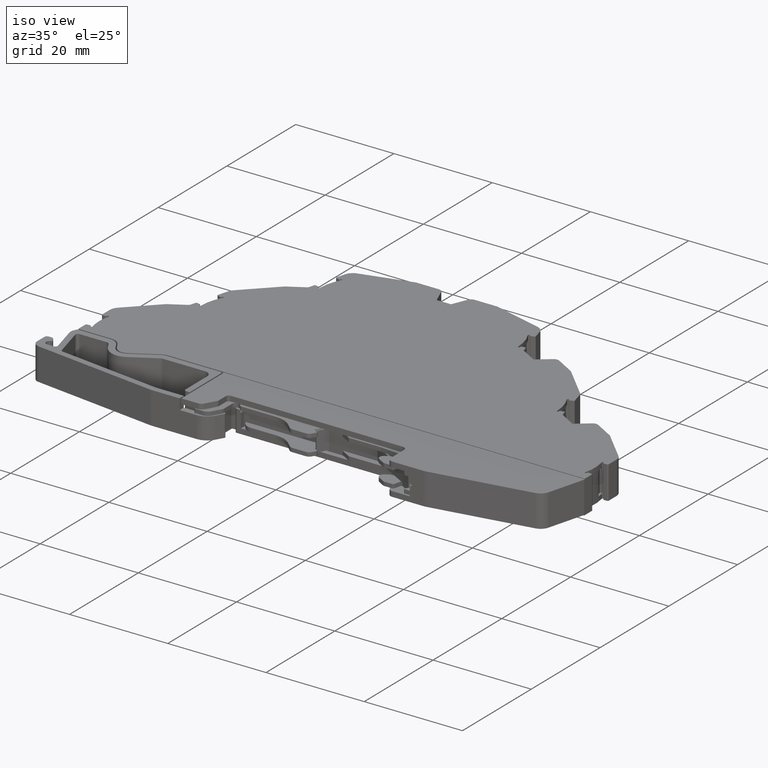
[diagram: clean part render]
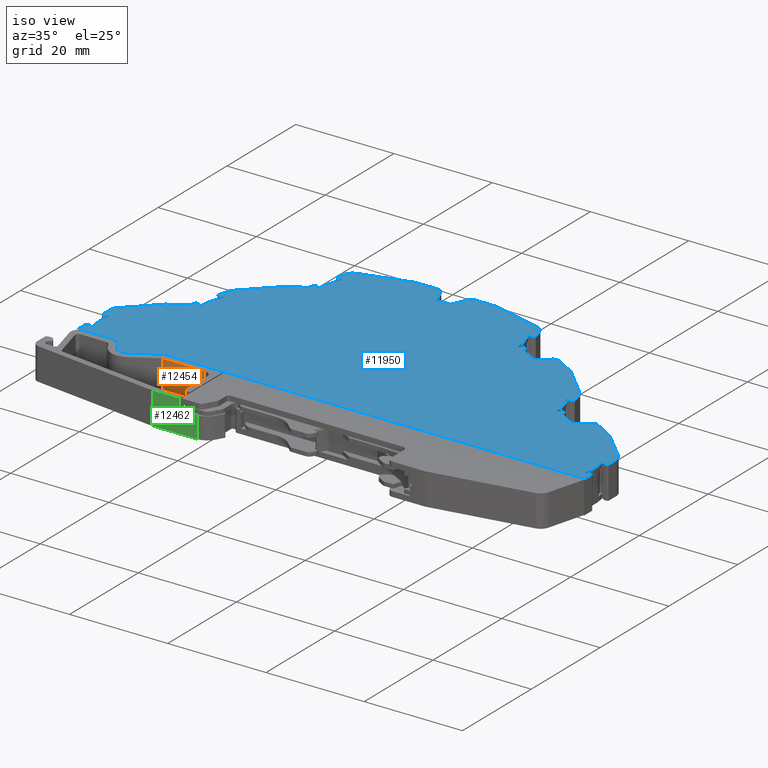
[diagram: same view with three faces highlighted in distinct colors, each labeled with its STEP entity id]
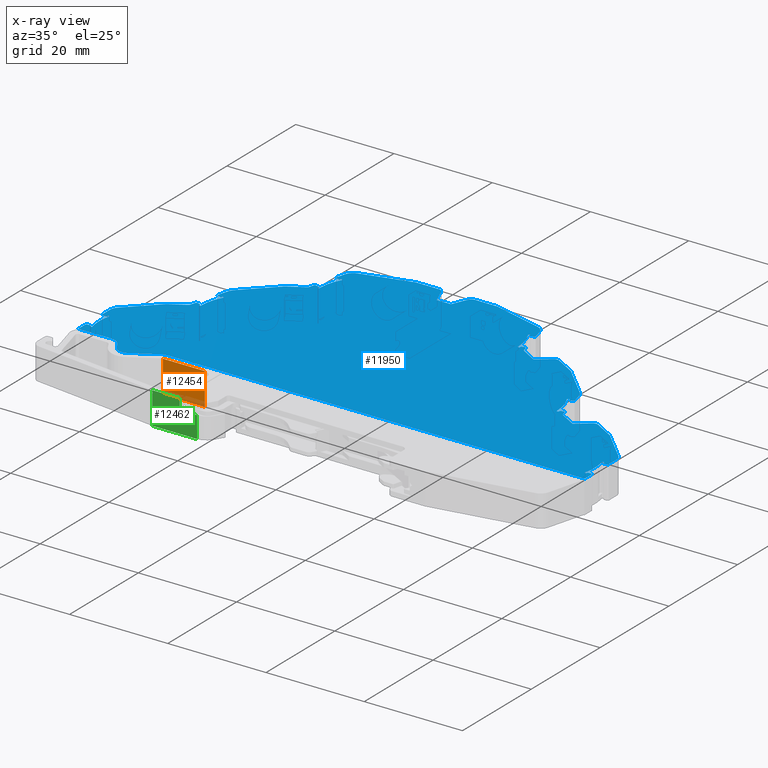
[diagram: x-ray of the same camera — body ghosted, the three highlighted faces saturated]
A machine part, iso view with three faces highlighted in distinct colors.
The next image is the same camera in x-ray (body ghosted, the three faces saturated) — at least one of them is partly hidden behind the body in this view.
Their STEP definitions:

[orange] entity #12454 — the highlighted planar face has unit normal (0, 1, 0).
#675 = CARTESIAN_POINT ( 'NONE',  ( 1.714999999999999900, 16.65365165461454900, -0.3450000000000010300 ) ) ;
#679 = LINE ( 'NONE', #675, #13603 ) ;
#682 = DIRECTION ( 'NONE',  ( -1.000000000000000000, 0.0000000000000000000, -0.0000000000000000000 ) ) ;
#811 = CARTESIAN_POINT ( 'NONE',  ( 233.8775560752951000, 16.65365165461454900, -29.19000000000000800 ) ) ;
#812 = DIRECTION ( 'NONE',  ( -0.0000000000000000000, 0.0000000000000000000, -1.000000000000000000 ) ) ;
#816 = LINE ( 'NONE', #811, #13754 ) ;
#4527 = EDGE_CURVE ( 'NONE', #18648, #18582, #9329, .T. ) ;
#4539 = EDGE_CURVE ( 'NONE', #18582, #18678, #9376, .T. ) ;
#5493 = CARTESIAN_POINT ( 'NONE',  ( 233.8775560752951000, 16.65365165461454900, 6.210000000000002600 ) ) ;
#5495 = CARTESIAN_POINT ( 'NONE',  ( 225.3132440525734800, 16.65365165461454900, -0.3450000000000015300 ) ) ;
#5543 = CARTESIAN_POINT ( 'NONE',  ( 225.3132440525734800, 16.65365165461454900, 6.210000000000010600 ) ) ;
#5743 = CARTESIAN_POINT ( 'NONE',  ( 233.8775560752951000, 16.65365165461454900, -0.3450000000000012500 ) ) ;
#9319 = DIRECTION ( 'NONE',  ( 0.0000000000000000000, -0.0000000000000000000, 1.000000000000000000 ) ) ;
#9329 = LINE ( 'NONE', #9357, #15585 ) ;
#9357 = CARTESIAN_POINT ( 'NONE',  ( 225.3132442724974000, 16.65365165461454900, -29.19000000000000800 ) ) ;
#9376 = LINE ( 'NONE', #9377, #15595 ) ;
#9377 = CARTESIAN_POINT ( 'NONE',  ( 257.5016616070095100, 16.65365165461454900, 6.210000000000007100 ) ) ;
#9385 = DIRECTION ( 'NONE',  ( 1.000000000000000000, 0.0000000000000000000, -0.0000000000000000000 ) ) ;
#11436 = FACE_OUTER_BOUND ( 'NONE', #18673, .T. ) ;
#11439 = PLANE ( 'NONE',  #13189 ) ;
#11440 = CARTESIAN_POINT ( 'NONE',  ( 257.5016616070095100, 16.65365165461454900, -29.19000000000000800 ) ) ;
#11461 = DIRECTION ( 'NONE',  ( 0.0000000000000000000, 1.000000000000000000, 0.0000000000000000000 ) ) ;
#11491 = DIRECTION ( 'NONE',  ( 0.0000000000000000000, -0.0000000000000000000, 1.000000000000000000 ) ) ;
#12454 = ADVANCED_FACE ( 'NONE', ( #11436 ), #11439, .F. ) ;
#13189 = AXIS2_PLACEMENT_3D ( 'NONE', #11440, #11461, #11491 ) ;
#13603 = VECTOR ( 'NONE', #682, 1000.000000000000000 ) ;
#13754 = VECTOR ( 'NONE', #812, 1000.000000000000000 ) ;
#15585 = VECTOR ( 'NONE', #9319, 1000.000000000000000 ) ;
#15595 = VECTOR ( 'NONE', #9385, 1000.000000000000000 ) ;
#18582 = VERTEX_POINT ( 'NONE', #5543 ) ;
#18648 = VERTEX_POINT ( 'NONE', #5495 ) ;
#18673 = EDGE_LOOP ( 'NONE', ( #21745, #21768, #21778, #21761 ) ) ;
#18678 = VERTEX_POINT ( 'NONE', #5493 ) ;
#18956 = VERTEX_POINT ( 'NONE', #5743 ) ;
#21745 = ORIENTED_EDGE ( 'NONE', *, *, #4539, .F. ) ;
#21761 = ORIENTED_EDGE ( 'NONE', *, *, #22448, .F. ) ;
#21768 = ORIENTED_EDGE ( 'NONE', *, *, #4527, .F. ) ;
#21778 = ORIENTED_EDGE ( 'NONE', *, *, #22405, .F. ) ;
#22405 = EDGE_CURVE ( 'NONE', #18956, #18648, #679, .T. ) ;
#22448 = EDGE_CURVE ( 'NONE', #18678, #18956, #816, .T. ) ;

[blue] entity #11950 — the highlighted planar face has unit normal (0, 0, 1).
#171 = DIRECTION ( 'NONE',  ( -0.5000024861834494500, 0.8660239683809964900, -0.0000000000000000000 ) ) ;
#173 = LINE ( 'NONE', #174, #13518 ) ;
#174 = CARTESIAN_POINT ( 'NONE',  ( 253.1615112655895500, -47.62643230754481700, 6.254999999999996300 ) ) ;
#399 = CARTESIAN_POINT ( 'NONE',  ( 225.3132401042720100, 15.65365339502480100, 6.254999999999983000 ) ) ;
#401 = DIRECTION ( 'NONE',  ( -0.0000000000000000000, -0.0000000000000000000, -1.000000000000000000 ) ) ;
#409 = DIRECTION ( 'NONE',  ( 1.000000000000000000, 0.0000000000000000000, 0.0000000000000000000 ) ) ;
#411 = DIRECTION ( 'NONE',  ( 0.2588276469332804200, 0.9659235213944119500, -0.0000000000000000000 ) ) ;
#426 = LINE ( 'NONE', #434, #14790 ) ;
#434 = CARTESIAN_POINT ( 'NONE',  ( 206.3252960464584500, -31.35599643012617600, 6.254999999999996300 ) ) ;
#504 = LINE ( 'NONE', #507, #13523 ) ;
#505 = DIRECTION ( 'NONE',  ( 0.9990460815974453500, -0.04366837350749858100, 0.0000000000000000000 ) ) ;
#507 = CARTESIAN_POINT ( 'NONE',  ( 207.9160690797147000, 20.44817945162834100, 6.254999999999999900 ) ) ;
#526 = DIRECTION ( 'NONE',  ( -0.9990437721030143200, -0.04372117818838296100, 0.0000000000000000000 ) ) ;
#541 = LINE ( 'NONE', #543, #13500 ) ;
#543 = CARTESIAN_POINT ( 'NONE',  ( 207.2538214525475600, 24.90720610288635200, 6.254999999999999900 ) ) ;
#610 = LINE ( 'NONE', #622, #13561 ) ;
#622 = CARTESIAN_POINT ( 'NONE',  ( 199.1901924666987000, -29.44254853229950100, 6.255000000000052300 ) ) ;
#683 = DIRECTION ( 'NONE',  ( 0.2588513387663942100, 0.9659171726493143200, -0.0000000000000000000 ) ) ;
#781 = LINE ( 'NONE', #786, #13700 ) ;
#786 = CARTESIAN_POINT ( 'NONE',  ( 309.3390021050634600, 24.87844163348244900, 6.254999999999999900 ) ) ;
#789 = DIRECTION ( 'NONE',  ( 0.9990460815974460100, 0.04366837350748493200, 0.0000000000000000000 ) ) ;
#825 = CARTESIAN_POINT ( 'NONE',  ( 310.0012924372950400, 20.41932921925697300, 6.254999999999999900 ) ) ;
#836 = DIRECTION ( 'NONE',  ( -0.9990473225087271900, 0.04363997465790994700, 0.0000000000000000000 ) ) ;
#848 = LINE ( 'NONE', #825, #13770 ) ;
#1856 = DIRECTION ( 'NONE',  ( 0.0000000000000000000, 0.0000000000000000000, 1.000000000000000000 ) ) ;
#1871 = CARTESIAN_POINT ( 'NONE',  ( 259.6925597848063500, -45.08546891419189300, 6.254999999999999900 ) ) ;
#1874 = FACE_OUTER_BOUND ( 'NONE', #17858, .T. ) ;
#1894 = DIRECTION ( 'NONE',  ( 1.000000000000000000, 0.0000000000000000000, -0.0000000000000000000 ) ) ;
#1898 = PLANE ( 'NONE',  #14252 ) ;
#2499 = VERTEX_POINT ( 'NONE', #16116 ) ;
#2512 = VERTEX_POINT ( 'NONE', #16153 ) ;
#2517 = VERTEX_POINT ( 'NONE', #16182 ) ;
#2518 = VERTEX_POINT ( 'NONE', #16224 ) ;
#2531 = VERTEX_POINT ( 'NONE', #16167 ) ;
#2540 = VERTEX_POINT ( 'NONE', #16186 ) ;
#2541 = VERTEX_POINT ( 'NONE', #16168 ) ;
#2545 = VERTEX_POINT ( 'NONE', #16207 ) ;
#2558 = VERTEX_POINT ( 'NONE', #16190 ) ;
#2561 = VERTEX_POINT ( 'NONE', #16169 ) ;
#2567 = VERTEX_POINT ( 'NONE', #16177 ) ;
#3713 = EDGE_CURVE ( 'NONE', #18348, #4809, #16315, .T. ) ;
#3732 = EDGE_CURVE ( 'NONE', #18338, #18793, #16345, .T. ) ;
#3746 = EDGE_CURVE ( 'NONE', #4814, #6572, #15739, .T. ) ;
#3757 = EDGE_CURVE ( 'NONE', #6624, #6330, #15718, .T. ) ;
#3764 = EDGE_CURVE ( 'NONE', #4810, #4756, #15748, .T. ) ;
#3779 = EDGE_CURVE ( 'NONE', #6580, #6440, #15807, .T. ) ;
#3792 = EDGE_CURVE ( 'NONE', #6608, #4777, #15838, .T. ) ;
#3794 = EDGE_CURVE ( 'NONE', #4800, #4765, #15804, .T. ) ;
#3798 = EDGE_CURVE ( 'NONE', #4809, #6598, #15785, .T. ) ;
#3805 = EDGE_CURVE ( 'NONE', #6382, #6631, #15778, .T. ) ;
#3811 = EDGE_CURVE ( 'NONE', #4781, #6582, #15784, .T. ) ;
#3836 = EDGE_CURVE ( 'NONE', #6532, #6436, #15872, .T. ) ;
#3878 = EDGE_CURVE ( 'NONE', #19858, #6468, #15923, .T. ) ;
#3910 = EDGE_CURVE ( 'NONE', #6532, #6507, #16907, .T. ) ;
#3913 = EDGE_CURVE ( 'NONE', #6531, #6557, #15972, .T. ) ;
#3917 = EDGE_CURVE ( 'NONE', #6511, #19858, #16897, .T. ) ;
#3931 = EDGE_CURVE ( 'NONE', #6363, #6392, #14855, .T. ) ;
#3937 = EDGE_CURVE ( 'NONE', #6511, #6476, #14860, .T. ) ;
#3938 = EDGE_CURVE ( 'NONE', #6507, #6446, #14891, .T. ) ;
#3948 = EDGE_CURVE ( 'NONE', #19856, #6519, #16983, .T. ) ;
#3949 = EDGE_CURVE ( 'NONE', #19832, #6463, #16989, .T. ) ;
#3969 = EDGE_CURVE ( 'NONE', #19853, #19837, #14848, .T. ) ;
#3970 = EDGE_CURVE ( 'NONE', #6557, #19877, #16007, .T. ) ;
#3975 = EDGE_CURVE ( 'NONE', #6446, #17081, #9746, .T. ) ;
#3987 = EDGE_CURVE ( 'NONE', #6463, #6531, #14951, .T. ) ;
#3991 = EDGE_CURVE ( 'NONE', #19851, #19885, #14929, .T. ) ;
#3993 = EDGE_CURVE ( 'NONE', #6476, #17099, #14958, .T. ) ;
#4005 = EDGE_CURVE ( 'NONE', #6519, #6363, #14905, .T. ) ;
#4008 = EDGE_CURVE ( 'NONE', #6436, #19874, #14927, .T. ) ;
#4012 = EDGE_CURVE ( 'NONE', #17040, #17076, #9809, .T. ) ;
#4013 = EDGE_CURVE ( 'NONE', #6468, #19844, #9818, .T. ) ;
#4026 = EDGE_CURVE ( 'NONE', #4756, #19862, #9864, .T. ) ;
#4029 = EDGE_CURVE ( 'NONE', #17018, #19865, #14972, .T. ) ;
#4030 = EDGE_CURVE ( 'NONE', #6582, #19851, #9853, .T. ) ;
#4036 = EDGE_CURVE ( 'NONE', #17026, #17040, #14967, .T. ) ;
#4038 = EDGE_CURVE ( 'NONE', #6392, #19865, #9885, .T. ) ;
#4047 = EDGE_CURVE ( 'NONE', #19875, #17092, #14992, .T. ) ;
#4057 = EDGE_CURVE ( 'NONE', #17088, #19853, #9937, .T. ) ;
#4094 = EDGE_CURVE ( 'NONE', #17092, #17073, #10072, .T. ) ;
#4100 = EDGE_CURVE ( 'NONE', #17044, #19875, #10073, .T. ) ;
#4102 = EDGE_CURVE ( 'NONE', #2567, #2540, #15047, .T. ) ;
#4105 = EDGE_CURVE ( 'NONE', #2499, #19874, #10079, .T. ) ;
#4111 = EDGE_CURVE ( 'NONE', #6440, #2567, #10156, .T. ) ;
#4118 = EDGE_CURVE ( 'NONE', #19862, #19876, #15035, .T. ) ;
#4119 = EDGE_CURVE ( 'NONE', #19837, #17031, #10122, .T. ) ;
#4124 = EDGE_CURVE ( 'NONE', #17065, #19877, #15064, .T. ) ;
#4144 = EDGE_CURVE ( 'NONE', #2545, #17099, #10242, .T. ) ;
#4158 = EDGE_CURVE ( 'NONE', #17037, #17084, #15136, .T. ) ;
#4161 = EDGE_CURVE ( 'NONE', #17061, #17046, #15127, .T. ) ;
#4174 = EDGE_CURVE ( 'NONE', #17018, #2558, #10306, .T. ) ;
#4178 = EDGE_CURVE ( 'NONE', #17046, #2561, #10303, .T. ) ;
#4181 = EDGE_CURVE ( 'NONE', #17019, #17026, #10348, .T. ) ;
#4182 = EDGE_CURVE ( 'NONE', #17064, #17037, #10349, .T. ) ;
#4186 = EDGE_CURVE ( 'NONE', #19876, #2517, #10363, .T. ) ;
#4189 = EDGE_CURVE ( 'NONE', #17044, #17030, #15188, .T. ) ;
#4226 = EDGE_CURVE ( 'NONE', #17088, #2531, #15208, .T. ) ;
#4236 = EDGE_CURVE ( 'NONE', #19885, #2512, #10482, .T. ) ;
#4241 = EDGE_CURVE ( 'NONE', #17065, #2541, #10557, .T. ) ;
#4266 = EDGE_CURVE ( 'NONE', #17084, #2518, #10580, .T. ) ;
#4359 = EDGE_CURVE ( 'NONE', #18456, #2541, #15340, .T. ) ;
#4404 = EDGE_CURVE ( 'NONE', #17019, #18526, #15412, .T. ) ;
#4413 = EDGE_CURVE ( 'NONE', #6631, #17030, #9032, .T. ) ;
#4433 = EDGE_CURVE ( 'NONE', #18468, #2558, #15524, .T. ) ;
#4439 = EDGE_CURVE ( 'NONE', #18474, #2518, #15474, .T. ) ;
#4572 = EDGE_CURVE ( 'NONE', #18764, #6082, #15609, .T. ) ;
#4635 = EDGE_CURVE ( 'NONE', #18236, #4800, #7577, .T. ) ;
#4668 = EDGE_CURVE ( 'NONE', #18278, #18733, #7679, .T. ) ;
#4686 = EDGE_CURVE ( 'NONE', #18238, #18737, #13864, .T. ) ;
#4694 = VERTEX_POINT ( 'NONE', #7775 ) ;
#4695 = VERTEX_POINT ( 'NONE', #7799 ) ;
#4702 = VERTEX_POINT ( 'NONE', #7791 ) ;
#4706 = VERTEX_POINT ( 'NONE', #7755 ) ;
#4708 = VERTEX_POINT ( 'NONE', #7756 ) ;
#4712 = VERTEX_POINT ( 'NONE', #7777 ) ;
#4715 = VERTEX_POINT ( 'NONE', #7771 ) ;
#4722 = VERTEX_POINT ( 'NONE', #7768 ) ;
#4723 = VERTEX_POINT ( 'NONE', #7783 ) ;
#4729 = VERTEX_POINT ( 'NONE', #7743 ) ;
#4739 = VERTEX_POINT ( 'NONE', #7784 ) ;
#4742 = VERTEX_POINT ( 'NONE', #7787 ) ;
#4745 = VERTEX_POINT ( 'NONE', #7788 ) ;
#4747 = VERTEX_POINT ( 'NONE', #7767 ) ;
#4748 = VERTEX_POINT ( 'NONE', #7790 ) ;
#4749 = VERTEX_POINT ( 'NONE', #7774 ) ;
#4750 = VERTEX_POINT ( 'NONE', #7793 ) ;
#4751 = VERTEX_POINT ( 'NONE', #7776 ) ;
#4752 = VERTEX_POINT ( 'NONE', #7794 ) ;
#4754 = VERTEX_POINT ( 'NONE', #7840 ) ;
#4756 = VERTEX_POINT ( 'NONE', #7862 ) ;
#4760 = VERTEX_POINT ( 'NONE', #7863 ) ;
#4765 = VERTEX_POINT ( 'NONE', #7842 ) ;
#4777 = VERTEX_POINT ( 'NONE', #7812 ) ;
#4778 = VERTEX_POINT ( 'NONE', #7851 ) ;
#4781 = VERTEX_POINT ( 'NONE', #7855 ) ;
#4792 = VERTEX_POINT ( 'NONE', #7811 ) ;
#4800 = VERTEX_POINT ( 'NONE', #7831 ) ;
#4803 = VERTEX_POINT ( 'NONE', #7846 ) ;
#4809 = VERTEX_POINT ( 'NONE', #7866 ) ;
#4810 = VERTEX_POINT ( 'NONE', #7805 ) ;
#4814 = VERTEX_POINT ( 'NONE', #7841 ) ;
#4831 = VERTEX_POINT ( 'NONE', #7869 ) ;
#4835 = VERTEX_POINT ( 'NONE', #7915 ) ;
#4839 = VERTEX_POINT ( 'NONE', #7890 ) ;
#4848 = VERTEX_POINT ( 'NONE', #7897 ) ;
#4851 = VERTEX_POINT ( 'NONE', #7886 ) ;
#4854 = VERTEX_POINT ( 'NONE', #7867 ) ;
#4954 = DIRECTION ( 'NONE',  ( 0.0000000000000000000, 0.0000000000000000000, -1.000000000000000000 ) ) ;
#4973 = DIRECTION ( 'NONE',  ( -1.000000000000000000, 0.0000000000000000000, 0.0000000000000000000 ) ) ;
#4993 = CARTESIAN_POINT ( 'NONE',  ( 292.2045730106244700, 37.70086225050079800, 6.254999999999999900 ) ) ;
#5092 = DIRECTION ( 'NONE',  ( 0.9537022051354897600, -0.3007525626153567100, 0.0000000000000000000 ) ) ;
#5120 = LINE ( 'NONE', #5122, #13346 ) ;
#5122 = CARTESIAN_POINT ( 'NONE',  ( 230.8089691202759200, 59.27608204147161100, 6.254999999999999900 ) ) ;
#5152 = CARTESIAN_POINT ( 'NONE',  ( 272.3316948299564600, 54.74575178294469400, 6.254999999999999900 ) ) ;
#5178 = DIRECTION ( 'NONE',  ( 0.0000000000000000000, 0.0000000000000000000, -1.000000000000000000 ) ) ;
#5179 = DIRECTION ( 'NONE',  ( -1.000000000000000000, 0.0000000000000000000, 0.0000000000000000000 ) ) ;
#5204 = CARTESIAN_POINT ( 'NONE',  ( 270.4495272338574500, 59.21978619292149700, 6.254999999999999900 ) ) ;
#5209 = CARTESIAN_POINT ( 'NONE',  ( 208.0726405309451900, 25.02806713061746200, 6.254999999999999900 ) ) ;
#5214 = DIRECTION ( 'NONE',  ( -1.000000000000000000, 0.0000000000000000000, 0.0000000000000000000 ) ) ;
#5219 = DIRECTION ( 'NONE',  ( 0.0000000000000000000, 0.0000000000000000000, -1.000000000000000000 ) ) ;
#5228 = CARTESIAN_POINT ( 'NONE',  ( 218.0813539454025000, 37.75288901360880800, 6.254999999999999900 ) ) ;
#5230 = CARTESIAN_POINT ( 'NONE',  ( 208.2226829355884900, 25.26907817276555300, 6.254999999999999900 ) ) ;
#5231 = CARTESIAN_POINT ( 'NONE',  ( 231.9328969278905700, 59.34955780786688700, 6.254999999999999900 ) ) ;
#5238 = CARTESIAN_POINT ( 'NONE',  ( 208.3208832467941500, 25.26906951009948400, 6.254999999999999000 ) ) ;
#5247 = CARTESIAN_POINT ( 'NONE',  ( 309.1824371565230100, 20.20738742156690300, 6.254999999999999900 ) ) ;
#5249 = CARTESIAN_POINT ( 'NONE',  ( 219.7191233664015300, 42.30500547229730300, 6.254999999999999900 ) ) ;
#5250 = CARTESIAN_POINT ( 'NONE',  ( 291.2238443691593400, 37.27051278223722600, 6.254999999999999900 ) ) ;
#5253 = CARTESIAN_POINT ( 'NONE',  ( 208.0726697111541900, 25.11912624136880400, 6.254999999999999900 ) ) ;
#5254 = CARTESIAN_POINT ( 'NONE',  ( 208.0726824242754800, 20.20732174750570600, 6.254999999999999900 ) ) ;
#5263 = CARTESIAN_POINT ( 'NONE',  ( 231.6311115120455200, 59.18091690800789500, 6.254999999999999900 ) ) ;
#5267 = CARTESIAN_POINT ( 'NONE',  ( 219.4179525095586900, 42.13619713075032500, 6.254999999999999900 ) ) ;
#5270 = CARTESIAN_POINT ( 'NONE',  ( 230.2945129478899600, 54.79760879086699500, 6.254999999999999900 ) ) ;
#5273 = CARTESIAN_POINT ( 'NONE',  ( 208.3212522498021400, 20.05740993060532400, 6.254999999999999900 ) ) ;
#5281 = CARTESIAN_POINT ( 'NONE',  ( 219.2279631995811500, 42.03201108489296400, 6.254999999999999900 ) ) ;
#5288 = CARTESIAN_POINT ( 'NONE',  ( 208.2226809810383900, 20.05741128379116100, 6.254999999999999900 ) ) ;
#5289 = CARTESIAN_POINT ( 'NONE',  ( 309.0324534877502200, 20.05746611973400900, 6.254999999999999900 ) ) ;
#5300 = CARTESIAN_POINT ( 'NONE',  ( 290.3674728115327600, 42.03201108489300700, 6.254999999999999900 ) ) ;
#5317 = CARTESIAN_POINT ( 'NONE',  ( 292.3977577149033200, 37.75262777988751800, 6.254999999999998100 ) ) ;
#5343 = CARTESIAN_POINT ( 'NONE',  ( 309.1824849478307400, 20.29847945350464400, 6.254999999999999900 ) ) ;
#5351 = CARTESIAN_POINT ( 'NONE',  ( 219.6252566840349800, 42.33016313607586100, 6.254999999999999900 ) ) ;
#5353 = CARTESIAN_POINT ( 'NONE',  ( 271.6412289046780300, 54.79760425546394500, 6.254999999999999900 ) ) ;
#5376 = CARTESIAN_POINT ( 'NONE',  ( 270.4946401182498900, 59.07673086215113000, 6.254999999999999900 ) ) ;
#5396 = CARTESIAN_POINT ( 'NONE',  ( 272.5248795342354200, 54.79751731233128700, 6.254999999999998100 ) ) ;
#5434 = CARTESIAN_POINT ( 'NONE',  ( 207.9160902826208700, 24.87825828639747500, 6.254999999999999900 ) ) ;
#5436 = CARTESIAN_POINT ( 'NONE',  ( 217.1975506647789600, 37.75284091581301700, 6.255000000000053200 ) ) ;
#5469 = CARTESIAN_POINT ( 'NONE',  ( 229.4108827860829900, 54.79751731233118100, 6.254999999999996300 ) ) ;
#5486 = CARTESIAN_POINT ( 'NONE',  ( 207.9160690797147000, 20.44817945162833800, 6.254999999999999900 ) ) ;
#5560 = CARTESIAN_POINT ( 'NONE',  ( 309.3390309233852200, 20.44825785460064400, 6.254999999999999900 ) ) ;
#5562 = CARTESIAN_POINT ( 'NONE',  ( 309.3390021050634000, 24.87844163348244200, 6.254999999999999900 ) ) ;
#5572 = CARTESIAN_POINT ( 'NONE',  ( 292.6246239588206200, 36.90598158962843200, 6.254999999999998100 ) ) ;
#5654 = CARTESIAN_POINT ( 'NONE',  ( 272.7517924606910400, 53.95069690667099100, 6.254999999999998100 ) ) ;
#5680 = CARTESIAN_POINT ( 'NONE',  ( 215.9047983215131700, 16.90365961048348400, 6.254999999999996300 ) ) ;
#5719 = CARTESIAN_POINT ( 'NONE',  ( 224.0632235306848900, 17.81870733563630800, 6.254999999999976800 ) ) ;
#5726 = CARTESIAN_POINT ( 'NONE',  ( 225.3132401042720100, 18.15365339502478300, 6.254999999999991000 ) ) ;
#5736 = CARTESIAN_POINT ( 'NONE',  ( 216.5482045450565600, 15.78925472972534100, 6.254999999999983000 ) ) ;
#5737 = CARTESIAN_POINT ( 'NONE',  ( 229.1363905728644000, 53.77313491605733000, 6.254999999999996300 ) ) ;
#5750 = CARTESIAN_POINT ( 'NONE',  ( 310.0012924372950400, 20.41932921925697300, 6.254999999999999900 ) ) ;
#5751 = CARTESIAN_POINT ( 'NONE',  ( 216.9229983761160600, 36.72833483570723700, 6.255000000000052300 ) ) ;
#5770 = CARTESIAN_POINT ( 'NONE',  ( 207.2538214525475800, 24.90720610288635200, 6.254999999999999900 ) ) ;
#5772 = CARTESIAN_POINT ( 'NONE',  ( 207.2538108916114100, 20.41919702957907000, 6.254999999999996300 ) ) ;
#5802 = CARTESIAN_POINT ( 'NONE',  ( 310.0012981170650100, 24.90739063809528600, 6.255000000000001700 ) ) ;
#5810 = CARTESIAN_POINT ( 'NONE',  ( 216.6900474224972000, 36.42475221003260800, 6.255000000000024800 ) ) ;
#5816 = CARTESIAN_POINT ( 'NONE',  ( 219.5481346218416000, 45.48845606297402400, 6.254999999999996300 ) ) ;
#5825 = CARTESIAN_POINT ( 'NONE',  ( 232.0252631276833900, 59.13196694131508500, 6.254999999999999900 ) ) ;
#5836 = CARTESIAN_POINT ( 'NONE',  ( 310.1925644423636800, 18.15365339502481800, 6.254999999999997200 ) ) ;
#5843 = CARTESIAN_POINT ( 'NONE',  ( 218.4627212887476200, 42.47389060342791800, 6.254999999999998100 ) ) ;
#5847 = CARTESIAN_POINT ( 'NONE',  ( 218.5606722034146100, 37.41281836832671800, 6.254999999999999900 ) ) ;
#5861 = CARTESIAN_POINT ( 'NONE',  ( 219.8115072414102300, 42.08743840979148100, 6.254999999999999900 ) ) ;
#5870 = CARTESIAN_POINT ( 'NONE',  ( 213.7397384005606100, 18.15365339502484300, 6.254999999999996300 ) ) ;
#5873 = CARTESIAN_POINT ( 'NONE',  ( 207.0625551272490000, 25.10701531920585300, 6.254999999999998100 ) ) ;
#5875 = CARTESIAN_POINT ( 'NONE',  ( 310.1925644423637300, 27.34294370456129600, 6.255000000000045200 ) ) ;
#5882 = CARTESIAN_POINT ( 'NONE',  ( 228.9034143764572200, 53.46952770349177100, 6.254999999999996300 ) ) ;
#5887 = CARTESIAN_POINT ( 'NONE',  ( 310.1925644423637300, 20.21951975475525000, 6.254999999999998100 ) ) ;
#5895 = CARTESIAN_POINT ( 'NONE',  ( 219.0302602547514800, 44.59169163943156600, 6.254999999999996300 ) ) ;
#5898 = CARTESIAN_POINT ( 'NONE',  ( 252.4178237489654700, 61.75373601842309800, 6.254999999999997200 ) ) ;
#5900 = CARTESIAN_POINT ( 'NONE',  ( 207.0625551272490000, 18.15365339502481100, 6.254999999999997200 ) ) ;
#5901 = CARTESIAN_POINT ( 'NONE',  ( 208.4664160241737500, 25.08278784707695400, 6.254999999999999900 ) ) ;
#5909 = CARTESIAN_POINT ( 'NONE',  ( 219.2802657406882100, 15.05721654960309400, 6.254999999999976800 ) ) ;
#5910 = CARTESIAN_POINT ( 'NONE',  ( 249.5178193620635100, 61.75373601842309800, 6.255000000000019400 ) ) ;
#5917 = CARTESIAN_POINT ( 'NONE',  ( 309.6064229741827500, 28.75751220838387900, 6.255000000000045200 ) ) ;
#5920 = CARTESIAN_POINT ( 'NONE',  ( 230.7735427794276900, 54.45758685620730000, 6.254999999999999900 ) ) ;
#5927 = CARTESIAN_POINT ( 'NONE',  ( 310.1925644423637300, 25.10719985441474800, 6.255000000000021200 ) ) ;
#5937 = CARTESIAN_POINT ( 'NONE',  ( 207.0625551272490000, 27.34294370456121500, 6.254999999999996300 ) ) ;
#5939 = CARTESIAN_POINT ( 'NONE',  ( 289.9701754200840500, 42.33016208888683000, 6.254999999999999900 ) ) ;
#5944 = CARTESIAN_POINT ( 'NONE',  ( 231.6547075300555600, 59.26886570240777300, 6.254999999999999900 ) ) ;
#5948 = CARTESIAN_POINT ( 'NONE',  ( 218.3718672371186600, 37.27049182640655500, 6.254999999999999900 ) ) ;
#5955 = CARTESIAN_POINT ( 'NONE',  ( 271.5523123843682900, 54.52449204962267300, 6.254999999999999900 ) ) ;
#5956 = CARTESIAN_POINT ( 'NONE',  ( 270.0973427268014600, 59.37488186614491100, 6.254999999999999900 ) ) ;
#5958 = CARTESIAN_POINT ( 'NONE',  ( 308.7886585147933300, 25.08296848298924400, 6.254999999999999900 ) ) ;
#5961 = CARTESIAN_POINT ( 'NONE',  ( 207.0625551272490000, 20.21938827515845800, 6.254999999999996300 ) ) ;
#5962 = CARTESIAN_POINT ( 'NONE',  ( 231.8384195935170200, 59.37488186614491100, 6.254999999999999900 ) ) ;
#5971 = CARTESIAN_POINT ( 'NONE',  ( 230.6759349285204100, 59.51858801188529200, 6.255000000000005200 ) ) ;
#5975 = CARTESIAN_POINT ( 'NONE',  ( 218.1938152956757300, 37.56770624823412400, 6.254999999999999900 ) ) ;
#5987 = CARTESIAN_POINT ( 'NONE',  ( 230.5847383016986800, 54.31528876486778000, 6.254999999999999900 ) ) ;
#5996 = CARTESIAN_POINT ( 'NONE',  ( 271.3510356289243600, 54.31529187618125600, 6.254999999999999900 ) ) ;
#5998 = CARTESIAN_POINT ( 'NONE',  ( 207.6486965954304900, 28.75751220838283100, 6.254999999999996300 ) ) ;
#6001 = CARTESIAN_POINT ( 'NONE',  ( 270.2810547902631100, 59.26886570240702700, 6.254999999999999900 ) ) ;
#6015 = CARTESIAN_POINT ( 'NONE',  ( 290.1538874835459900, 42.22414592514899600, 6.254999999999999900 ) ) ;
#6016 = CARTESIAN_POINT ( 'NONE',  ( 230.4069742981630500, 54.61242602549163600, 6.254999999999999900 ) ) ;
#6030 = CARTESIAN_POINT ( 'NONE',  ( 291.5135114501175100, 37.75264489443811300, 6.254999999999999900 ) ) ;
#6034 = CARTESIAN_POINT ( 'NONE',  ( 219.4415485275680500, 42.22414592514906700, 6.254999999999999900 ) ) ;
#6082 = VERTEX_POINT ( 'NONE', #7878 ) ;
#6330 = VERTEX_POINT ( 'NONE', #7992 ) ;
#6363 = VERTEX_POINT ( 'NONE', #8000 ) ;
#6382 = VERTEX_POINT ( 'NONE', #8046 ) ;
#6392 = VERTEX_POINT ( 'NONE', #8028 ) ;
#6436 = VERTEX_POINT ( 'NONE', #8030 ) ;
#6440 = VERTEX_POINT ( 'NONE', #8012 ) ;
#6446 = VERTEX_POINT ( 'NONE', #8021 ) ;
#6463 = VERTEX_POINT ( 'NONE', #8016 ) ;
#6468 = VERTEX_POINT ( 'NONE', #8031 ) ;
#6476 = VERTEX_POINT ( 'NONE', #8094 ) ;
#6507 = VERTEX_POINT ( 'NONE', #8077 ) ;
#6511 = VERTEX_POINT ( 'NONE', #8116 ) ;
#6519 = VERTEX_POINT ( 'NONE', #8063 ) ;
#6531 = VERTEX_POINT ( 'NONE', #8088 ) ;
#6532 = VERTEX_POINT ( 'NONE', #8089 ) ;
#6557 = VERTEX_POINT ( 'NONE', #8114 ) ;
#6572 = VERTEX_POINT ( 'NONE', #8091 ) ;
#6580 = VERTEX_POINT ( 'NONE', #8095 ) ;
#6582 = VERTEX_POINT ( 'NONE', #8096 ) ;
#6598 = VERTEX_POINT ( 'NONE', #8183 ) ;
#6608 = VERTEX_POINT ( 'NONE', #8169 ) ;
#6624 = VERTEX_POINT ( 'NONE', #8155 ) ;
#6631 = VERTEX_POINT ( 'NONE', #8171 ) ;
#7577 = LINE ( 'NONE', #7592, #13828 ) ;
#7585 = DIRECTION ( 'NONE',  ( 0.9537022051354794300, 0.3007525626153898500, 0.0000000000000000000 ) ) ;
#7592 = CARTESIAN_POINT ( 'NONE',  ( 290.3674728115327600, 42.03201108489302800, 6.254999999999999900 ) ) ;
#7665 = DIRECTION ( 'NONE',  ( 0.2588276469336233700, -0.9659235213943201400, -0.0000000000000000000 ) ) ;
#7679 = LINE ( 'NONE', #7680, #13950 ) ;
#7680 = CARTESIAN_POINT ( 'NONE',  ( 310.9169422789462900, -31.35944807203691600, 6.254999999999996300 ) ) ;
#7697 = DIRECTION ( 'NONE',  ( 0.0000000000000000000, 0.0000000000000000000, -1.000000000000000000 ) ) ;
#7700 = CARTESIAN_POINT ( 'NONE',  ( 309.3324849271865600, 20.29840075622430000, 6.254999999999999900 ) ) ;
#7708 = DIRECTION ( 'NONE',  ( -1.000000000000000000, 0.0000000000000000000, 0.0000000000000000000 ) ) ;
#7743 = CARTESIAN_POINT ( 'NONE',  ( 303.8095101494069500, 34.55151556232007700, 6.255000000000031000 ) ) ;
#7755 = CARTESIAN_POINT ( 'NONE',  ( 232.5758610212128300, 62.74392350966359500, 6.255000000000038100 ) ) ;
#7756 = CARTESIAN_POINT ( 'NONE',  ( 299.8097146074745200, 36.86091902021870900, 6.255000000000003400 ) ) ;
#7767 = CARTESIAN_POINT ( 'NONE',  ( 231.1612140497461500, 61.32960983736509100, 6.255000000000024800 ) ) ;
#7768 = CARTESIAN_POINT ( 'NONE',  ( 259.2576819100441400, 65.45375394750016100, 6.254999999999996300 ) ) ;
#7771 = CARTESIAN_POINT ( 'NONE',  ( 292.8576005549240900, 36.60237414631592400, 6.254999999999999900 ) ) ;
#7774 = CARTESIAN_POINT ( 'NONE',  ( 272.9847690567950200, 53.64708946335820600, 6.254999999999999900 ) ) ;
#7775 = CARTESIAN_POINT ( 'NONE',  ( 289.7833318859187000, 42.08724716405714600, 6.254999999999999900 ) ) ;
#7776 = CARTESIAN_POINT ( 'NONE',  ( 290.0840012501798800, 45.45106309101343100, 6.255000000000149100 ) ) ;
#7777 = CARTESIAN_POINT ( 'NONE',  ( 248.2408649993097100, 64.83645071416727000, 6.255000000000066500 ) ) ;
#7783 = CARTESIAN_POINT ( 'NONE',  ( 283.9417773520449400, 51.59328698914765700, 6.255000000000205100 ) ) ;
#7784 = CARTESIAN_POINT ( 'NONE',  ( 291.0350531298107100, 37.41281520227953900, 6.254999999999999900 ) ) ;
#7787 = CARTESIAN_POINT ( 'NONE',  ( 290.5650802471259300, 44.59202957575796900, 6.255000000000066500 ) ) ;
#7788 = CARTESIAN_POINT ( 'NONE',  ( 291.1326600850810000, 42.47386823462726100, 6.255000000000014100 ) ) ;
#7790 = CARTESIAN_POINT ( 'NONE',  ( 269.3628268260691800, 62.73893889543380500, 6.254999999999996300 ) ) ;
#7791 = CARTESIAN_POINT ( 'NONE',  ( 213.4455697155603400, 34.55147587760249200, 6.254999999999996300 ) ) ;
#7793 = CARTESIAN_POINT ( 'NONE',  ( 254.6185329136205300, 65.45375394750023200, 6.254999999999996300 ) ) ;
#7794 = CARTESIAN_POINT ( 'NONE',  ( 276.1810526358154900, 51.80186028435750200, 6.254999999999997200 ) ) ;
#7799 = CARTESIAN_POINT ( 'NONE',  ( 271.1622309412795700, 54.45760215299900900, 6.254999999999999900 ) ) ;
#7805 = CARTESIAN_POINT ( 'NONE',  ( 269.8920980714055400, 59.20477878359880500, 6.254999999999999900 ) ) ;
#7811 = CARTESIAN_POINT ( 'NONE',  ( 296.0538899866555800, 34.75714158851831600, 6.254999999999999000 ) ) ;
#7812 = CARTESIAN_POINT ( 'NONE',  ( 308.7883361051574400, 20.24375916822108600, 6.254999999999999900 ) ) ;
#7831 = CARTESIAN_POINT ( 'NONE',  ( 290.9996258933250600, 42.23136226421346600, 6.254999999999998100 ) ) ;
#7840 = CARTESIAN_POINT ( 'NONE',  ( 270.7757608461659500, 61.32508460483519700, 6.255000000000107400 ) ) ;
#7841 = CARTESIAN_POINT ( 'NONE',  ( 208.4667946392994500, 20.24371436911214800, 6.254999999999999900 ) ) ;
#7842 = CARTESIAN_POINT ( 'NONE',  ( 291.1394753808019700, 42.42210270524054700, 6.255000000000003400 ) ) ;
#7846 = CARTESIAN_POINT ( 'NONE',  ( 247.3169909901600900, 65.45375394750018900, 6.255000000000101100 ) ) ;
#7851 = CARTESIAN_POINT ( 'NONE',  ( 225.6575269129954500, 51.59565797972258100, 6.254999999999996300 ) ) ;
#7855 = CARTESIAN_POINT ( 'NONE',  ( 289.7645337235881600, 42.15995258195825100, 6.254999999999999900 ) ) ;
#7862 = CARTESIAN_POINT ( 'NONE',  ( 270.0032624335290200, 59.34966423224949500, 6.254999999999999900 ) ) ;
#7863 = CARTESIAN_POINT ( 'NONE',  ( 242.6982654827689900, 65.45375394750018900, 6.255000000000086900 ) ) ;
#7866 = CARTESIAN_POINT ( 'NONE',  ( 271.1267932000421900, 59.27608204147165300, 6.255000000000101100 ) ) ;
#7867 = CARTESIAN_POINT ( 'NONE',  ( 271.2598273917980100, 59.51858801188533500, 6.255000000000235300 ) ) ;
#7869 = CARTESIAN_POINT ( 'NONE',  ( 279.9368772566344900, 53.90563771605778200, 6.255000000000086900 ) ) ;
#7878 = CARTESIAN_POINT ( 'NONE',  ( 309.1824518567388500, 25.02825047770307500, 6.254999999999999900 ) ) ;
#7886 = CARTESIAN_POINT ( 'NONE',  ( 278.8281021886594400, 53.83298148272307100, 6.254999999999996300 ) ) ;
#7890 = CARTESIAN_POINT ( 'NONE',  ( 298.7009395394994700, 36.78826278688394800, 6.254999999999996300 ) ) ;
#7897 = CARTESIAN_POINT ( 'NONE',  ( 253.6946462733930000, 64.83642021986976500, 6.254999999999996300 ) ) ;
#7915 = CARTESIAN_POINT ( 'NONE',  ( 269.9108903277986500, 59.13208402438170500, 6.254999999999999900 ) ) ;
#7992 = CARTESIAN_POINT ( 'NONE',  ( 230.8089691202759200, 59.27608204147161100, 6.254999999999999900 ) ) ;
#8000 = CARTESIAN_POINT ( 'NONE',  ( 218.1652046299335600, 37.44096876326985100, 6.254999999999999900 ) ) ;
#8012 = CARTESIAN_POINT ( 'NONE',  ( 308.9341906167131200, 25.26925285555035900, 6.254999999999999900 ) ) ;
#8016 = CARTESIAN_POINT ( 'NONE',  ( 230.4895367975846600, 54.34080073256402700, 6.254999999999999900 ) ) ;
#8021 = CARTESIAN_POINT ( 'NONE',  ( 291.3184458208994600, 37.29585467521553700, 6.254999999999999900 ) ) ;
#8028 = CARTESIAN_POINT ( 'NONE',  ( 218.1702922586688700, 37.47970382044594800, 6.254999999999999900 ) ) ;
#8030 = CARTESIAN_POINT ( 'NONE',  ( 291.3959490766492900, 37.60619421883174600, 6.254999999999999900 ) ) ;
#8031 = CARTESIAN_POINT ( 'NONE',  ( 271.4462438474448600, 54.34080564319489100, 6.254999999999999900 ) ) ;
#8046 = CARTESIAN_POINT ( 'NONE',  ( 218.4559047232775400, 42.42212033567459900, 6.254999999999999900 ) ) ;
#8063 = CARTESIAN_POINT ( 'NONE',  ( 218.2763777950976900, 37.29608095530577600, 6.254999999999999900 ) ) ;
#8077 = CARTESIAN_POINT ( 'NONE',  ( 291.4245481513017900, 37.47946783684576400, 6.254999999999999900 ) ) ;
#8088 = CARTESIAN_POINT ( 'NONE',  ( 230.3783636324205000, 54.48568854052811600, 6.254999999999999900 ) ) ;
#8089 = CARTESIAN_POINT ( 'NONE',  ( 291.4010331632252900, 37.56747241571635200, 6.254999999999999900 ) ) ;
#8091 = CARTESIAN_POINT ( 'NONE',  ( 208.1694833252261400, 22.66401027333340000, 6.254999999999999900 ) ) ;
#8094 = CARTESIAN_POINT ( 'NONE',  ( 271.5236799256695100, 54.65115654726540100, 6.254999999999999900 ) ) ;
#8095 = CARTESIAN_POINT ( 'NONE',  ( 308.7842038488494700, 25.11925285613399700, 6.254999999999999900 ) ) ;
#8096 = CARTESIAN_POINT ( 'NONE',  ( 289.8756980857115800, 42.30483803060907600, 6.254999999999999900 ) ) ;
#8114 = CARTESIAN_POINT ( 'NONE',  ( 230.3834512611561300, 54.52442359770496000, 6.254999999999999900 ) ) ;
#8116 = CARTESIAN_POINT ( 'NONE',  ( 271.5287845539102700, 54.61235794880173000, 6.254999999999999900 ) ) ;
#8155 = CARTESIAN_POINT ( 'NONE',  ( 230.6691196327989800, 59.46682248249872100, 6.254999999999999900 ) ) ;
#8169 = CARTESIAN_POINT ( 'NONE',  ( 308.7838766030690200, 20.20745540164426000, 6.254999999999999900 ) ) ;
#8171 = CARTESIAN_POINT ( 'NONE',  ( 218.5957542107544500, 42.23137989464749600, 6.254999999999999900 ) ) ;
#8183 = CARTESIAN_POINT ( 'NONE',  ( 271.2666426875190400, 59.46682248249872100, 6.255000000000223700 ) ) ;
#8838 = DIRECTION ( 'NONE',  ( -0.0000000000000000000, -0.0000000000000000000, -1.000000000000000000 ) ) ;
#8843 = CARTESIAN_POINT ( 'NONE',  ( 229.6040674903615000, 54.74575178294460200, 6.254999999999996300 ) ) ;
#8864 = DIRECTION ( 'NONE',  ( 1.000000000000000000, 0.0000000000000000000, 0.0000000000000000000 ) ) ;
#8985 = CARTESIAN_POINT ( 'NONE',  ( 207.9226405386469900, 25.02811519863709900, 6.254999999999999900 ) ) ;
#8999 = DIRECTION ( 'NONE',  ( 0.0000000000000000000, 0.0000000000000000000, -1.000000000000000000 ) ) ;
#9000 = DIRECTION ( 'NONE',  ( -1.000000000000000000, 0.0000000000000000000, 0.0000000000000000000 ) ) ;
#9011 = CARTESIAN_POINT ( 'NONE',  ( 218.5957542107544500, 42.23137989464749600, 6.254999999999999900 ) ) ;
#9032 = LINE ( 'NONE', #9011, #15409 ) ;
#9040 = DIRECTION ( 'NONE',  ( 0.9537022051354781000, -0.3007525626153941300, 0.0000000000000000000 ) ) ;
#9060 = CARTESIAN_POINT ( 'NONE',  ( 217.3907340993090100, 37.70107064805969800, 6.255000000000054100 ) ) ;
#9068 = DIRECTION ( 'NONE',  ( 0.0000000000000000000, 0.0000000000000000000, -1.000000000000000000 ) ) ;
#9075 = DIRECTION ( 'NONE',  ( -0.0000000000000000000, -0.0000000000000000000, -1.000000000000000000 ) ) ;
#9077 = CARTESIAN_POINT ( 'NONE',  ( 207.9226272564429800, 20.29832288581290100, 6.254999999999999900 ) ) ;
#9082 = DIRECTION ( 'NONE',  ( -1.000000000000000000, 0.0000000000000000000, 0.0000000000000000000 ) ) ;
#9090 = DIRECTION ( 'NONE',  ( 1.000000000000000000, 3.469446951953515100E-014, 0.0000000000000000000 ) ) ;
#9469 = CARTESIAN_POINT ( 'NONE',  ( 309.3324518490371100, 25.02829854572205200, 6.254999999999999900 ) ) ;
#9472 = DIRECTION ( 'NONE',  ( 0.0000000000000000000, 0.0000000000000000000, -1.000000000000000000 ) ) ;
#9474 = DIRECTION ( 'NONE',  ( -1.000000000000000000, 0.0000000000000000000, 0.0000000000000000000 ) ) ;
#9729 = DIRECTION ( 'NONE',  ( -0.9659423901170537400, -0.2587572201407207800, 0.0000000000000000000 ) ) ;
#9730 = CARTESIAN_POINT ( 'NONE',  ( 291.3184458208995100, 37.29585467521553700, 6.254999999999999900 ) ) ;
#9746 = LINE ( 'NONE', #9730, #14930 ) ;
#9754 = CARTESIAN_POINT ( 'NONE',  ( 290.0090110579606100, 42.18527664023611800, 6.254999999999999900 ) ) ;
#9756 = DIRECTION ( 'NONE',  ( 0.0000000000000000000, 0.0000000000000000000, -1.000000000000000000 ) ) ;
#9760 = DIRECTION ( 'NONE',  ( -1.000000000000000000, 0.0000000000000000000, 0.0000000000000000000 ) ) ;
#9762 = DIRECTION ( 'NONE',  ( 0.0000000000000000000, 0.0000000000000000000, -1.000000000000000000 ) ) ;
#9765 = DIRECTION ( 'NONE',  ( 0.0000000000000000000, 0.0000000000000000000, -1.000000000000000000 ) ) ;
#9782 = CARTESIAN_POINT ( 'NONE',  ( 230.5283636324204800, 54.48568854052811600, 6.254999999999999900 ) ) ;
#9783 = DIRECTION ( 'NONE',  ( -1.000000000000000000, 0.0000000000000000000, 0.0000000000000000000 ) ) ;
#9784 = DIRECTION ( 'NONE',  ( -1.000000000000000000, 0.0000000000000000000, 0.0000000000000000000 ) ) ;
#9791 = CARTESIAN_POINT ( 'NONE',  ( 271.6736799256694900, 54.65115654726540100, 6.254999999999999900 ) ) ;
#9803 = DIRECTION ( 'NONE',  ( 0.0000000000000000000, 0.0000000000000000000, -1.000000000000000000 ) ) ;
#9809 = LINE ( 'NONE', #9830, #14955 ) ;
#9811 = DIRECTION ( 'NONE',  ( 1.000000000000000000, 0.0000000000000000000, -0.0000000000000000000 ) ) ;
#9816 = CARTESIAN_POINT ( 'NONE',  ( 291.5459490766506300, 37.60619421883174600, 6.254999999999999900 ) ) ;
#9818 = LINE ( 'NONE', #9834, #14928 ) ;
#9820 = DIRECTION ( 'NONE',  ( -1.000000000000000000, 0.0000000000000000000, 0.0000000000000000000 ) ) ;
#9825 = CARTESIAN_POINT ( 'NONE',  ( 218.3152046299335300, 37.44096876326985100, 6.254999999999999900 ) ) ;
#9828 = DIRECTION ( 'NONE',  ( -1.000000000000000000, 0.0000000000000000000, 0.0000000000000000000 ) ) ;
#9830 = CARTESIAN_POINT ( 'NONE',  ( 259.6925597848063500, 25.26907817276555300, 6.254999999999999900 ) ) ;
#9834 = CARTESIAN_POINT ( 'NONE',  ( 271.4462438474448600, 54.34080564319489100, 6.254999999999999900 ) ) ;
#9837 = DIRECTION ( 'NONE',  ( 0.0000000000000000000, 0.0000000000000000000, -1.000000000000000000 ) ) ;
#9838 = DIRECTION ( 'NONE',  ( -0.9659187197603663600, -0.2588455655723982400, 0.0000000000000000000 ) ) ;
#9849 = DIRECTION ( 'NONE',  ( 0.0000000000000000000, 0.0000000000000000000, -1.000000000000000000 ) ) ;
#9851 = CARTESIAN_POINT ( 'NONE',  ( 218.0489029244109800, 37.60644130541025000, 6.254999999999999900 ) ) ;
#9853 = LINE ( 'NONE', #9863, #14965 ) ;
#9855 = DIRECTION ( 'NONE',  ( -1.000000000000000000, 0.0000000000000000000, 0.0000000000000000000 ) ) ;
#9856 = CARTESIAN_POINT ( 'NONE',  ( 270.0032624335290200, 59.34966423224949500, 6.254999999999999900 ) ) ;
#9862 = DIRECTION ( 'NONE',  ( 0.9659029910048547700, 0.2589042525102193100, 0.0000000000000000000 ) ) ;
#9863 = CARTESIAN_POINT ( 'NONE',  ( 289.8756980857115800, 42.30483803060906900, 6.254999999999999900 ) ) ;
#9864 = LINE ( 'NONE', #9856, #14953 ) ;
#9883 = DIRECTION ( 'NONE',  ( 0.9659029910048518900, 0.2589042525102302500, 0.0000000000000000000 ) ) ;
#9885 = LINE ( 'NONE', #9893, #14964 ) ;
#9888 = DIRECTION ( 'NONE',  ( 0.0000000000000000000, 0.0000000000000000000, -1.000000000000000000 ) ) ;
#9893 = CARTESIAN_POINT ( 'NONE',  ( 218.1702922586688700, 37.47970382044594800, 6.254999999999999900 ) ) ;
#9908 = DIRECTION ( 'NONE',  ( -1.000000000000000000, 0.0000000000000000000, 0.0000000000000000000 ) ) ;
#9923 = CARTESIAN_POINT ( 'NONE',  ( 208.2226697034524800, 25.11907817334916600, 6.254999999999999900 ) ) ;
#9927 = DIRECTION ( 'NONE',  ( 0.2582337145074760600, 0.9660824750981000800, 0.0000000000000000000 ) ) ;
#9934 = CARTESIAN_POINT ( 'NONE',  ( 219.5864249531535100, 42.18527664023600500, 6.254999999999999900 ) ) ;
#9937 = LINE ( 'NONE', #9947, #14999 ) ;
#9947 = CARTESIAN_POINT ( 'NONE',  ( 231.6311115120455200, 59.18091690800791600, 6.254999999999999900 ) ) ;
#9956 = DIRECTION ( 'NONE',  ( 0.2591285660908592100, 0.9658428372337267700, 0.0000000000000000000 ) ) ;
#9961 = DIRECTION ( 'NONE',  ( 0.0000000000000000000, 0.0000000000000000000, -1.000000000000000000 ) ) ;
#9973 = DIRECTION ( 'NONE',  ( -1.000000000000000000, 0.0000000000000000000, 0.0000000000000000000 ) ) ;
#10072 = LINE ( 'NONE', #10099, #15087 ) ;
#10073 = LINE ( 'NONE', #10089, #15032 ) ;
#10078 = DIRECTION ( 'NONE',  ( 0.9659099722656437900, -0.2588782058763988700, 0.0000000000000000000 ) ) ;
#10079 = LINE ( 'NONE', #10090, #15071 ) ;
#10083 = DIRECTION ( 'NONE',  ( -0.9763378373613608200, -0.2162508435510510100, 0.0000000000000000000 ) ) ;
#10089 = CARTESIAN_POINT ( 'NONE',  ( 219.4179525095586900, 42.13619713075035400, 6.254999999999999900 ) ) ;
#10090 = CARTESIAN_POINT ( 'NONE',  ( 292.1613228419144000, 37.89612981797304800, 6.254999999999999900 ) ) ;
#10091 = DIRECTION ( 'NONE',  ( 0.2591285660868784000, 0.9658428372347946900, 0.0000000000000000000 ) ) ;
#10095 = CARTESIAN_POINT ( 'NONE',  ( 309.0324226842320700, 25.11926152043409700, 6.254999999999999000 ) ) ;
#10096 = DIRECTION ( 'NONE',  ( -1.000000000000000000, 0.0000000000000000000, 0.0000000000000000000 ) ) ;
#10099 = CARTESIAN_POINT ( 'NONE',  ( 219.6252566840349800, 42.33016313607586100, 6.254999999999999900 ) ) ;
#10112 = DIRECTION ( 'NONE',  ( 0.0000000000000000000, 0.0000000000000000000, -1.000000000000000000 ) ) ;
#10119 = CARTESIAN_POINT ( 'NONE',  ( 270.1361783646780200, 59.22999641749419900, 6.254999999999999900 ) ) ;
#10121 = CARTESIAN_POINT ( 'NONE',  ( 259.6925597848063500, 25.26925285555035900, 6.254999999999999900 ) ) ;
#10122 = LINE ( 'NONE', #10139, #15058 ) ;
#10123 = DIRECTION ( 'NONE',  ( 0.9659029910048980700, -0.2589042525100582200, 0.0000000000000000000 ) ) ;
#10127 = DIRECTION ( 'NONE',  ( 1.000000000000000000, 0.0000000000000000000, -0.0000000000000000000 ) ) ;
#10139 = CARTESIAN_POINT ( 'NONE',  ( 231.8384195935170200, 59.37488186614491100, 6.254999999999999900 ) ) ;
#10140 = DIRECTION ( 'NONE',  ( 0.0000000000000000000, 0.0000000000000000000, -1.000000000000000000 ) ) ;
#10141 = DIRECTION ( 'NONE',  ( -1.000000000000000000, 0.0000000000000000000, 0.0000000000000000000 ) ) ;
#10156 = LINE ( 'NONE', #10121, #15048 ) ;
#10187 = CARTESIAN_POINT ( 'NONE',  ( 230.2620619268985000, 54.65116108266849400, 6.254999999999999900 ) ) ;
#10193 = DIRECTION ( 'NONE',  ( -1.000000000000000000, 0.0000000000000000000, 0.0000000000000000000 ) ) ;
#10196 = DIRECTION ( 'NONE',  ( 0.0000000000000000000, 0.0000000000000000000, -1.000000000000000000 ) ) ;
#10208 = CARTESIAN_POINT ( 'NONE',  ( 272.2884268019678300, 54.94101539387609300, 6.254999999999999900 ) ) ;
#10226 = DIRECTION ( 'NONE',  ( -0.9763180546570395800, -0.2163401399433163800, 0.0000000000000000000 ) ) ;
#10242 = LINE ( 'NONE', #10208, #15146 ) ;
#10264 = CARTESIAN_POINT ( 'NONE',  ( 208.2226823967394900, 20.20741263695025200, 6.254999999999999900 ) ) ;
#10268 = CARTESIAN_POINT ( 'NONE',  ( 309.0324371771669700, 20.20746611884724700, 6.254999999999999900 ) ) ;
#10269 = DIRECTION ( 'NONE',  ( 0.0000000000000000000, 0.0000000000000000000, -1.000000000000000000 ) ) ;
#10276 = DIRECTION ( 'NONE',  ( 0.0000000000000000000, 0.0000000000000000000, -1.000000000000000000 ) ) ;
#10277 = DIRECTION ( 'NONE',  ( -1.000000000000000000, 0.0000000000000000000, 0.0000000000000000000 ) ) ;
#10288 = DIRECTION ( 'NONE',  ( -1.000000000000000000, 0.0000000000000000000, 0.0000000000000000000 ) ) ;
#10303 = LINE ( 'NONE', #10308, #15125 ) ;
#10306 = LINE ( 'NONE', #10339, #15140 ) ;
#10307 = DIRECTION ( 'NONE',  ( -0.9763180546570043900, 0.2163401399434754800, 0.0000000000000000000 ) ) ;
#10308 = CARTESIAN_POINT ( 'NONE',  ( 309.0324534877502200, 20.05746611973400900, 6.254999999999999900 ) ) ;
#10309 = DIRECTION ( 'NONE',  ( -0.9999999940881083600, -0.0001087372209515927300, 0.0000000000000000000 ) ) ;
#10339 = CARTESIAN_POINT ( 'NONE',  ( 218.0813539454025000, 37.75288901360880800, 6.254999999999999900 ) ) ;
#10345 = DIRECTION ( 'NONE',  ( -1.000000000000000000, -0.0000000000000000000, 0.0000000000000000000 ) ) ;
#10347 = DIRECTION ( 'NONE',  ( -1.000000000000000000, 0.0000000000000000000, 0.0000000000000000000 ) ) ;
#10348 = LINE ( 'NONE', #10368, #15144 ) ;
#10349 = LINE ( 'NONE', #10362, #15129 ) ;
#10357 = DIRECTION ( 'NONE',  ( 0.0003204534643495603300, 0.9999999486547872500, 0.0000000000000000000 ) ) ;
#10362 = CARTESIAN_POINT ( 'NONE',  ( 259.6925597848063500, 20.05740993060532800, 6.254999999999999900 ) ) ;
#10363 = LINE ( 'NONE', #10378, #15192 ) ;
#10365 = DIRECTION ( 'NONE',  ( 0.0000000000000000000, 0.0000000000000000000, -1.000000000000000000 ) ) ;
#10368 = CARTESIAN_POINT ( 'NONE',  ( 208.0726405309451900, 25.02806713061747600, 6.254999999999999900 ) ) ;
#10373 = DIRECTION ( 'NONE',  ( 0.2591285660857272100, -0.9658428372351037800, 0.0000000000000000000 ) ) ;
#10378 = CARTESIAN_POINT ( 'NONE',  ( 270.2810547902631100, 59.26886570240702700, 6.254999999999999900 ) ) ;
#10379 = CARTESIAN_POINT ( 'NONE',  ( 219.2730760839734800, 42.17506641566333800, 6.254999999999999900 ) ) ;
#10482 = LINE ( 'NONE', #10487, #15267 ) ;
#10487 = CARTESIAN_POINT ( 'NONE',  ( 290.1538874835459900, 42.22414592514900300, 6.254999999999999900 ) ) ;
#10489 = DIRECTION ( 'NONE',  ( 0.2591285660855746100, -0.9658428372351445200, 0.0000000000000000000 ) ) ;
#10495 = DIRECTION ( 'NONE',  ( -1.000000000000000000, 0.0000000000000000000, 0.0000000000000000000 ) ) ;
#10505 = DIRECTION ( 'NONE',  ( 0.0000000000000000000, 0.0000000000000000000, -1.000000000000000000 ) ) ;
#10510 = CARTESIAN_POINT ( 'NONE',  ( 231.4862350864604800, 59.21978619292149700, 6.254999999999999900 ) ) ;
#10534 = CARTESIAN_POINT ( 'NONE',  ( 230.2945129478899600, 54.79760879086699500, 6.254999999999999900 ) ) ;
#10557 = LINE ( 'NONE', #10534, #15221 ) ;
#10559 = DIRECTION ( 'NONE',  ( -0.9763180546570543500, 0.2163401399432502100, 0.0000000000000000000 ) ) ;
#10579 = DIRECTION ( 'NONE',  ( -0.0006059296302958901900, 0.9999998164246246500, 0.0000000000000000000 ) ) ;
#10580 = LINE ( 'NONE', #10593, #15271 ) ;
#10593 = CARTESIAN_POINT ( 'NONE',  ( 208.0726824242754800, 20.20732174750570900, 6.254999999999999900 ) ) ;
#10673 = LINE ( 'NONE', #10702, #13303 ) ;
#10702 = CARTESIAN_POINT ( 'NONE',  ( 309.1824226765302800, 25.11930958845308500, 6.254999999999999900 ) ) ;
#10704 = DIRECTION ( 'NONE',  ( 0.0003204534597819780100, -0.9999999486547887000, 0.0000000000000000000 ) ) ;
#11434 = CARTESIAN_POINT ( 'NONE',  ( 290.3223599271404400, 42.17506641566340200, 6.254999999999999900 ) ) ;
#11438 = DIRECTION ( 'NONE',  ( 0.0000000000000000000, 0.0000000000000000000, -1.000000000000000000 ) ) ;
#11486 = DIRECTION ( 'NONE',  ( -1.000000000000000000, 0.0000000000000000000, 0.0000000000000000000 ) ) ;
#11756 = LINE ( 'NONE', #11764, #13256 ) ;
#11759 = DIRECTION ( 'NONE',  ( -0.0005246485356678469500, -0.9999998623719474900, 0.0000000000000000000 ) ) ;
#11764 = CARTESIAN_POINT ( 'NONE',  ( 309.1824849478307400, 20.29847945350464400, 6.254999999999999900 ) ) ;
#11950 = ADVANCED_FACE ( 'NONE', ( #1874 ), #1898, .T. ) ;
#12539 = EDGE_CURVE ( 'NONE', #18238, #17061, #11756, .T. ) ;
#12556 = EDGE_CURVE ( 'NONE', #2540, #6082, #10673, .T. ) ;
#12560 = EDGE_CURVE ( 'NONE', #18236, #2512, #13294, .T. ) ;
#12588 = EDGE_CURVE ( 'NONE', #2499, #18278, #13312, .T. ) ;
#12628 = EDGE_CURVE ( 'NONE', #6330, #2531, #5120, .T. ) ;
#12640 = EDGE_CURVE ( 'NONE', #2545, #18338, #13376, .T. ) ;
#12663 = EDGE_CURVE ( 'NONE', #18348, #2517, #13402, .T. ) ;
#13256 = VECTOR ( 'NONE', #11759, 1000.000000000000100 ) ;
#13274 = AXIS2_PLACEMENT_3D ( 'NONE', #4993, #4954, #4973 ) ;
#13294 = CIRCLE ( 'NONE', #13321, 0.1499999999999834800 ) ;
#13303 = VECTOR ( 'NONE', #10704, 1000.000000000000200 ) ;
#13312 = CIRCLE ( 'NONE', #13274, 0.1999999999999779700 ) ;
#13321 = AXIS2_PLACEMENT_3D ( 'NONE', #11434, #11438, #11486 ) ;
#13346 = VECTOR ( 'NONE', #5092, 1000.000000000000200 ) ;
#13349 = AXIS2_PLACEMENT_3D ( 'NONE', #5152, #5178, #5179 ) ;
#13376 = CIRCLE ( 'NONE', #13349, 0.1999999999999779700 ) ;
#13402 = CIRCLE ( 'NONE', #13409, 0.1499999999999834800 ) ;
#13409 = AXIS2_PLACEMENT_3D ( 'NONE', #5204, #5219, #5214 ) ;
#13500 = VECTOR ( 'NONE', #505, 1000.000000000000100 ) ;
#13518 = VECTOR ( 'NONE', #171, 1000.000000000000100 ) ;
#13523 = VECTOR ( 'NONE', #526, 1000.000000000000200 ) ;
#13561 = VECTOR ( 'NONE', #683, 1000.000000000000100 ) ;
#13700 = VECTOR ( 'NONE', #789, 1000.000000000000100 ) ;
#13770 = VECTOR ( 'NONE', #836, 1000.000000000000200 ) ;
#13795 = CIRCLE ( 'NONE', #13813, 0.1500000000000112400 ) ;
#13803 = CIRCLE ( 'NONE', #13854, 1.999999999999974000 ) ;
#13813 = AXIS2_PLACEMENT_3D ( 'NONE', #20023, #20032, #20017 ) ;
#13828 = VECTOR ( 'NONE', #7585, 1000.000000000000000 ) ;
#13854 = AXIS2_PLACEMENT_3D ( 'NONE', #19980, #19952, #19957 ) ;
#13856 = VECTOR ( 'NONE', #19988, 1000.000000000000000 ) ;
#13863 = CIRCLE ( 'NONE', #13867, 0.5000000000001669800 ) ;
#13864 = CIRCLE ( 'NONE', #13936, 0.1499999999999834800 ) ;
#13867 = AXIS2_PLACEMENT_3D ( 'NONE', #20008, #20019, #19998 ) ;
#13912 = VECTOR ( 'NONE', #20216, 1000.000000000000000 ) ;
#13916 = CIRCLE ( 'NONE', #13924, 2.500000000000113200 ) ;
#13918 = CIRCLE ( 'NONE', #14015, 0.2000000000000057300 ) ;
#13924 = AXIS2_PLACEMENT_3D ( 'NONE', #20165, #20137, #20156 ) ;
#13933 = VECTOR ( 'NONE', #20136, 999.9999999999998900 ) ;
#13936 = AXIS2_PLACEMENT_3D ( 'NONE', #7700, #7697, #7708 ) ;
#13944 = AXIS2_PLACEMENT_3D ( 'NONE', #20158, #20140, #20141 ) ;
#13947 = AXIS2_PLACEMENT_3D ( 'NONE', #20098, #20121, #20092 ) ;
#13950 = VECTOR ( 'NONE', #7665, 1000.000000000000000 ) ;
#13966 = AXIS2_PLACEMENT_3D ( 'NONE', #20100, #20117, #20097 ) ;
#13986 = CIRCLE ( 'NONE', #13966, 0.1499999999999834800 ) ;
#13990 = CIRCLE ( 'NONE', #13947, 0.2000000000000057300 ) ;
#14001 = CIRCLE ( 'NONE', #13944, 0.1500000000000112400 ) ;
#14015 = AXIS2_PLACEMENT_3D ( 'NONE', #20073, #20040, #20064 ) ;
#14029 = CIRCLE ( 'NONE', #14099, 0.1500000000000112400 ) ;
#14049 = AXIS2_PLACEMENT_3D ( 'NONE', #20245, #20235, #20227 ) ;
#14055 = CIRCLE ( 'NONE', #14049, 0.2000000000000057300 ) ;
#14059 = CIRCLE ( 'NONE', #14126, 0.4999999999998894200 ) ;
#14074 = AXIS2_PLACEMENT_3D ( 'NONE', #20301, #20267, #20289 ) ;
#14076 = CIRCLE ( 'NONE', #14074, 2.000000000000001800 ) ;
#14094 = AXIS2_PLACEMENT_3D ( 'NONE', #20256, #20264, #20243 ) ;
#14099 = AXIS2_PLACEMENT_3D ( 'NONE', #20220, #20203, #20199 ) ;
#14113 = CIRCLE ( 'NONE', #14094, 0.1500000000000112400 ) ;
#14126 = AXIS2_PLACEMENT_3D ( 'NONE', #20282, #20283, #20317 ) ;
#14171 = CIRCLE ( 'NONE', #14251, 0.1499999999999834800 ) ;
#14176 = AXIS2_PLACEMENT_3D ( 'NONE', #20352, #20384, #20351 ) ;
#14186 = CIRCLE ( 'NONE', #14259, 1.000000000000000900 ) ;
#14205 = CIRCLE ( 'NONE', #14255, 0.1499999999999834800 ) ;
#14231 = AXIS2_PLACEMENT_3D ( 'NONE', #20372, #20368, #20359 ) ;
#14233 = CIRCLE ( 'NONE', #14176, 0.2000000000000057300 ) ;
#14237 = VECTOR ( 'NONE', #20391, 1000.000000000000000 ) ;
#14243 = CIRCLE ( 'NONE', #14231, 2.000000000000029300 ) ;
#14251 = AXIS2_PLACEMENT_3D ( 'NONE', #20406, #20409, #20407 ) ;
#14252 = AXIS2_PLACEMENT_3D ( 'NONE', #1871, #1856, #1894 ) ;
#14255 = AXIS2_PLACEMENT_3D ( 'NONE', #20429, #20423, #20431 ) ;
#14259 = AXIS2_PLACEMENT_3D ( 'NONE', #20397, #20416, #20432 ) ;
#14265 = CIRCLE ( 'NONE', #14267, 0.1999999999999779700 ) ;
#14267 = AXIS2_PLACEMENT_3D ( 'NONE', #20419, #20411, #20413 ) ;
#14275 = CIRCLE ( 'NONE', #14336, 2.000000000000001800 ) ;
#14304 = AXIS2_PLACEMENT_3D ( 'NONE', #20553, #20531, #20524 ) ;
#14336 = AXIS2_PLACEMENT_3D ( 'NONE', #20503, #20489, #20507 ) ;
#14342 = CIRCLE ( 'NONE', #14304, 0.1499999999999834800 ) ;
#14356 = AXIS2_PLACEMENT_3D ( 'NONE', #20670, #20663, #20673 ) ;
#14364 = AXIS2_PLACEMENT_3D ( 'NONE', #20661, #20684, #20672 ) ;
#14368 = CIRCLE ( 'NONE', #14370, 0.1499999999999834800 ) ;
#14370 = AXIS2_PLACEMENT_3D ( 'NONE', #20582, #20570, #20571 ) ;
#14397 = CIRCLE ( 'NONE', #14356, 0.1999999999999779700 ) ;
#14401 = CIRCLE ( 'NONE', #14364, 0.9999999999999453800 ) ;
#14404 = AXIS2_PLACEMENT_3D ( 'NONE', #20719, #20711, #20712 ) ;
#14406 = VECTOR ( 'NONE', #20822, 1000.000000000000000 ) ;
#14409 = CIRCLE ( 'NONE', #14456, 0.5000000000000004400 ) ;
#14415 = VECTOR ( 'NONE', #20832, 1000.000000000000000 ) ;
#14417 = CIRCLE ( 'NONE', #14480, 0.1499999999999834800 ) ;
#14419 = AXIS2_PLACEMENT_3D ( 'NONE', #20702, #20716, #20724 ) ;
#14427 = VECTOR ( 'NONE', #20756, 1000.000000000000100 ) ;
#14437 = CIRCLE ( 'NONE', #14451, 0.5000000000000004400 ) ;
#14444 = CIRCLE ( 'NONE', #14452, 2.000000000000001800 ) ;
#14446 = CIRCLE ( 'NONE', #14419, 0.1499999999999834800 ) ;
#14450 = VECTOR ( 'NONE', #20805, 1000.000000000000000 ) ;
#14451 = AXIS2_PLACEMENT_3D ( 'NONE', #20739, #20750, #20754 ) ;
#14452 = AXIS2_PLACEMENT_3D ( 'NONE', #20810, #20804, #20811 ) ;
#14456 = AXIS2_PLACEMENT_3D ( 'NONE', #20761, #20763, #20774 ) ;
#14458 = VECTOR ( 'NONE', #20794, 1000.000000000000000 ) ;
#14461 = VECTOR ( 'NONE', #20787, 1000.000000000000000 ) ;
#14464 = CIRCLE ( 'NONE', #14404, 0.1500000000000389900 ) ;
#14466 = AXIS2_PLACEMENT_3D ( 'NONE', #19923, #19915, #19924 ) ;
#14468 = VECTOR ( 'NONE', #19940, 1000.000000000000000 ) ;
#14472 = AXIS2_PLACEMENT_3D ( 'NONE', #23108, #23122, #23109 ) ;
#14474 = CIRCLE ( 'NONE', #14511, 0.9999999999999453800 ) ;
#14476 = VECTOR ( 'NONE', #19929, 1000.000000000000000 ) ;
#14477 = AXIS2_PLACEMENT_3D ( 'NONE', #23068, #23076, #23078 ) ;
#14480 = AXIS2_PLACEMENT_3D ( 'NONE', #19908, #19909, #19917 ) ;
#14482 = VECTOR ( 'NONE', #20005, 1000.000000000000100 ) ;
#14484 = CIRCLE ( 'NONE', #14477, 9.999999999996928700 ) ;
#14488 = CIRCLE ( 'NONE', #14490, 0.1999999999999779700 ) ;
#14490 = AXIS2_PLACEMENT_3D ( 'NONE', #23092, #23110, #23097 ) ;
#14492 = AXIS2_PLACEMENT_3D ( 'NONE', #19951, #19932, #19920 ) ;
#14493 = VECTOR ( 'NONE', #23048, 1000.000000000000000 ) ;
#14496 = CIRCLE ( 'NONE', #14497, 9.999999999996845200 ) ;
#14497 = AXIS2_PLACEMENT_3D ( 'NONE', #23064, #23067, #23069 ) ;
#14498 = CIRCLE ( 'NONE', #14472, 2.000000000000223800 ) ;
#14499 = VECTOR ( 'NONE', #23130, 1000.000000000000100 ) ;
#14501 = VECTOR ( 'NONE', #23079, 1000.000000000000000 ) ;
#14502 = VECTOR ( 'NONE', #23106, 1000.000000000000000 ) ;
#14505 = VECTOR ( 'NONE', #23070, 1000.000000000000000 ) ;
#14508 = AXIS2_PLACEMENT_3D ( 'NONE', #19942, #19950, #19919 ) ;
#14511 = AXIS2_PLACEMENT_3D ( 'NONE', #19911, #19910, #19921 ) ;
#14512 = CIRCLE ( 'NONE', #14492, 9.999999999996900300 ) ;
#14513 = VECTOR ( 'NONE', #19933, 1000.000000000000000 ) ;
#14519 = CIRCLE ( 'NONE', #14466, 1.000000000000056400 ) ;
#14520 = VECTOR ( 'NONE', #20809, 1000.000000000000000 ) ;
#14523 = VECTOR ( 'NONE', #23056, 1000.000000000000000 ) ;
#14526 = CIRCLE ( 'NONE', #14508, 0.1999999999999779700 ) ;
#14531 = VECTOR ( 'NONE', #23260, 1000.000000000000000 ) ;
#14539 = VECTOR ( 'NONE', #23191, 1000.000000000000000 ) ;
#14543 = CIRCLE ( 'NONE', #14546, 9.999999999996845200 ) ;
#14544 = CIRCLE ( 'NONE', #14584, 2.000000000000001800 ) ;
#14546 = AXIS2_PLACEMENT_3D ( 'NONE', #23251, #23263, #23253 ) ;
#14553 = VECTOR ( 'NONE', #23194, 1000.000000000000100 ) ;
#14558 = VECTOR ( 'NONE', #23262, 1000.000000000000000 ) ;
#14575 = VECTOR ( 'NONE', #23139, 1000.000000000000000 ) ;
#14583 = VECTOR ( 'NONE', #23252, 1000.000000000000000 ) ;
#14584 = AXIS2_PLACEMENT_3D ( 'NONE', #23232, #23240, #23242 ) ;
#14586 = VECTOR ( 'NONE', #23238, 1000.000000000000200 ) ;
#14593 = CIRCLE ( 'NONE', #14598, 9.999999999996845200 ) ;
#14598 = AXIS2_PLACEMENT_3D ( 'NONE', #23309, #23279, #23273 ) ;
#14605 = AXIS2_PLACEMENT_3D ( 'NONE', #23306, #23290, #23286 ) ;
#14615 = VECTOR ( 'NONE', #23271, 999.9999999999998900 ) ;
#14616 = CIRCLE ( 'NONE', #14605, 9.999999999996928700 ) ;
#14638 = VECTOR ( 'NONE', #23287, 1000.000000000000000 ) ;
#14786 = AXIS2_PLACEMENT_3D ( 'NONE', #399, #401, #409 ) ;
#14790 = VECTOR ( 'NONE', #411, 1000.000000000000100 ) ;
#14798 = CIRCLE ( 'NONE', #14786, 2.499999999999974200 ) ;
#14837 = VECTOR ( 'NONE', #17010, 1000.000000000000100 ) ;
#14840 = AXIS2_PLACEMENT_3D ( 'NONE', #16954, #16961, #16947 ) ;
#14843 = AXIS2_PLACEMENT_3D ( 'NONE', #16972, #16994, #16990 ) ;
#14848 = CIRCLE ( 'NONE', #14850, 0.1499999999999834800 ) ;
#14850 = AXIS2_PLACEMENT_3D ( 'NONE', #19102, #19121, #19162 ) ;
#14855 = CIRCLE ( 'NONE', #14840, 0.1499999999999834800 ) ;
#14860 = CIRCLE ( 'NONE', #14884, 0.1499999999999834800 ) ;
#14867 = VECTOR ( 'NONE', #16952, 1000.000000000000100 ) ;
#14884 = AXIS2_PLACEMENT_3D ( 'NONE', #16965, #16936, #16942 ) ;
#14891 = CIRCLE ( 'NONE', #14843, 0.1499999999988732600 ) ;
#14897 = VECTOR ( 'NONE', #16977, 1000.000000000000000 ) ;
#14905 = CIRCLE ( 'NONE', #14932, 0.1499999999999834800 ) ;
#14916 = AXIS2_PLACEMENT_3D ( 'NONE', #9782, #9765, #9783 ) ;
#14917 = AXIS2_PLACEMENT_3D ( 'NONE', #9791, #9762, #9784 ) ;
#14924 = AXIS2_PLACEMENT_3D ( 'NONE', #9816, #9837, #9828 ) ;
#14927 = CIRCLE ( 'NONE', #14924, 0.1500000000013712600 ) ;
#14928 = VECTOR ( 'NONE', #9838, 1000.000000000000100 ) ;
#14929 = CIRCLE ( 'NONE', #14939, 0.1499999999999834800 ) ;
#14930 = VECTOR ( 'NONE', #9729, 1000.000000000000200 ) ;
#14932 = AXIS2_PLACEMENT_3D ( 'NONE', #9825, #9803, #9820 ) ;
#14939 = AXIS2_PLACEMENT_3D ( 'NONE', #9754, #9756, #9760 ) ;
#14951 = CIRCLE ( 'NONE', #14916, 0.1499999999999834800 ) ;
#14953 = VECTOR ( 'NONE', #9862, 1000.000000000000100 ) ;
#14955 = VECTOR ( 'NONE', #9811, 1000.000000000000000 ) ;
#14958 = CIRCLE ( 'NONE', #14917, 0.1499999999999834800 ) ;
#14964 = VECTOR ( 'NONE', #9927, 1000.000000000000200 ) ;
#14965 = VECTOR ( 'NONE', #9883, 1000.000000000000100 ) ;
#14967 = CIRCLE ( 'NONE', #14968, 0.1500000000000112400 ) ;
#14968 = AXIS2_PLACEMENT_3D ( 'NONE', #9923, #9888, #9908 ) ;
#14972 = CIRCLE ( 'NONE', #15008, 0.1500000000000112400 ) ;
#14981 = AXIS2_PLACEMENT_3D ( 'NONE', #9934, #9961, #9973 ) ;
#14992 = CIRCLE ( 'NONE', #14981, 0.1500000000000112400 ) ;
#14999 = VECTOR ( 'NONE', #9956, 1000.000000000000100 ) ;
#15008 = AXIS2_PLACEMENT_3D ( 'NONE', #9851, #9849, #9855 ) ;
#15028 = AXIS2_PLACEMENT_3D ( 'NONE', #10119, #10140, #10141 ) ;
#15029 = AXIS2_PLACEMENT_3D ( 'NONE', #10187, #10196, #10193 ) ;
#15030 = AXIS2_PLACEMENT_3D ( 'NONE', #10095, #10112, #10096 ) ;
#15032 = VECTOR ( 'NONE', #10091, 1000.000000000000100 ) ;
#15035 = CIRCLE ( 'NONE', #15028, 0.1499999999999834800 ) ;
#15047 = CIRCLE ( 'NONE', #15030, 0.1499999999999834800 ) ;
#15048 = VECTOR ( 'NONE', #10127, 1000.000000000000000 ) ;
#15058 = VECTOR ( 'NONE', #10123, 1000.000000000000100 ) ;
#15064 = CIRCLE ( 'NONE', #15029, 0.1500000000000112400 ) ;
#15071 = VECTOR ( 'NONE', #10083, 999.9999999999998900 ) ;
#15087 = VECTOR ( 'NONE', #10078, 1000.000000000000200 ) ;
#15094 = AXIS2_PLACEMENT_3D ( 'NONE', #10268, #10269, #10277 ) ;
#15125 = VECTOR ( 'NONE', #10309, 1000.000000000000200 ) ;
#15127 = CIRCLE ( 'NONE', #15094, 0.1499999999999834800 ) ;
#15129 = VECTOR ( 'NONE', #10345, 1000.000000000000000 ) ;
#15136 = CIRCLE ( 'NONE', #15148, 0.1499999999999834800 ) ;
#15140 = VECTOR ( 'NONE', #10307, 1000.000000000000200 ) ;
#15144 = VECTOR ( 'NONE', #10357, 1000.000000000000100 ) ;
#15146 = VECTOR ( 'NONE', #10226, 1000.000000000000200 ) ;
#15148 = AXIS2_PLACEMENT_3D ( 'NONE', #10264, #10276, #10288 ) ;
#15163 = AXIS2_PLACEMENT_3D ( 'NONE', #10510, #10505, #10495 ) ;
#15188 = CIRCLE ( 'NONE', #15201, 0.1499999999999834800 ) ;
#15192 = VECTOR ( 'NONE', #10373, 999.9999999999998900 ) ;
#15201 = AXIS2_PLACEMENT_3D ( 'NONE', #10379, #10365, #10347 ) ;
#15208 = CIRCLE ( 'NONE', #15163, 0.1499999999999834800 ) ;
#15221 = VECTOR ( 'NONE', #10559, 999.9999999999998900 ) ;
#15267 = VECTOR ( 'NONE', #10489, 1000.000000000000100 ) ;
#15271 = VECTOR ( 'NONE', #10579, 1000.000000000000200 ) ;
#15340 = CIRCLE ( 'NONE', #15394, 0.2000000000000057300 ) ;
#15394 = AXIS2_PLACEMENT_3D ( 'NONE', #8843, #8838, #8864 ) ;
#15409 = VECTOR ( 'NONE', #9040, 1000.000000000000100 ) ;
#15412 = CIRCLE ( 'NONE', #15434, 0.1499999999999834800 ) ;
#15434 = AXIS2_PLACEMENT_3D ( 'NONE', #8985, #8999, #9000 ) ;
#15474 = CIRCLE ( 'NONE', #15510, 0.1499999999999834800 ) ;
#15507 = AXIS2_PLACEMENT_3D ( 'NONE', #9060, #9075, #9090 ) ;
#15510 = AXIS2_PLACEMENT_3D ( 'NONE', #9077, #9068, #9082 ) ;
#15524 = CIRCLE ( 'NONE', #15507, 0.2000000000000057300 ) ;
#15609 = CIRCLE ( 'NONE', #15640, 0.1499999999999834800 ) ;
#15640 = AXIS2_PLACEMENT_3D ( 'NONE', #9469, #9472, #9474 ) ;
#15666 = VECTOR ( 'NONE', #16350, 1000.000000000000000 ) ;
#15684 = VECTOR ( 'NONE', #16282, 999.9999999999998900 ) ;
#15718 = CIRCLE ( 'NONE', #15719, 0.2000000000000057300 ) ;
#15719 = AXIS2_PLACEMENT_3D ( 'NONE', #16449, #16412, #16435 ) ;
#15725 = AXIS2_PLACEMENT_3D ( 'NONE', #16437, #16446, #16448 ) ;
#15727 = AXIS2_PLACEMENT_3D ( 'NONE', #16400, #16390, #16391 ) ;
#15739 = CIRCLE ( 'NONE', #15727, 9.999999999996845200 ) ;
#15748 = CIRCLE ( 'NONE', #15725, 0.1499999999999834800 ) ;
#15778 = CIRCLE ( 'NONE', #15820, 0.2000000000000057300 ) ;
#15781 = AXIS2_PLACEMENT_3D ( 'NONE', #16608, #16578, #16599 ) ;
#15784 = CIRCLE ( 'NONE', #15781, 0.1499999999999834800 ) ;
#15785 = CIRCLE ( 'NONE', #15823, 0.1999999999999779700 ) ;
#15799 = AXIS2_PLACEMENT_3D ( 'NONE', #16529, #16517, #16530 ) ;
#15804 = CIRCLE ( 'NONE', #15837, 0.1999999999999779700 ) ;
#15807 = CIRCLE ( 'NONE', #15827, 0.1499999999999834800 ) ;
#15820 = AXIS2_PLACEMENT_3D ( 'NONE', #16558, #16559, #16560 ) ;
#15823 = AXIS2_PLACEMENT_3D ( 'NONE', #16538, #16533, #16546 ) ;
#15827 = AXIS2_PLACEMENT_3D ( 'NONE', #16489, #16479, #16484 ) ;
#15837 = AXIS2_PLACEMENT_3D ( 'NONE', #16552, #16571, #16572 ) ;
#15838 = CIRCLE ( 'NONE', #15799, 0.1499999999999834800 ) ;
#15872 = CIRCLE ( 'NONE', #15888, 0.1500000000013712600 ) ;
#15888 = AXIS2_PLACEMENT_3D ( 'NONE', #16700, #16702, #16663 ) ;
#15923 = CIRCLE ( 'NONE', #15959, 0.1499999999999834800 ) ;
#15959 = AXIS2_PLACEMENT_3D ( 'NONE', #16792, #16760, #16762 ) ;
#15967 = VECTOR ( 'NONE', #16917, 1000.000000000000000 ) ;
#15969 = AXIS2_PLACEMENT_3D ( 'NONE', #16908, #16892, #16915 ) ;
#15970 = VECTOR ( 'NONE', #16926, 1000.000000000000200 ) ;
#15972 = CIRCLE ( 'NONE', #15969, 0.1499999999999834800 ) ;
#16007 = LINE ( 'NONE', #16429, #14867 ) ;
#16116 = CARTESIAN_POINT ( 'NONE',  ( 292.1613228419143400, 37.89612981797304800, 6.254999999999999900 ) ) ;
#16153 = CARTESIAN_POINT ( 'NONE',  ( 290.1774835015551200, 42.13619713075056000, 6.254999999999999900 ) ) ;
#16167 = CARTESIAN_POINT ( 'NONE',  ( 231.4411222020681900, 59.07673086215122300, 6.254999999999999900 ) ) ;
#16168 = CARTESIAN_POINT ( 'NONE',  ( 229.6473355183502200, 54.94101539387600800, 6.254999999999996300 ) ) ;
#16169 = CARTESIAN_POINT ( 'NONE',  ( 308.9338929136521300, 20.05745540253102300, 6.254999999999999900 ) ) ;
#16177 = CARTESIAN_POINT ( 'NONE',  ( 309.0324094520955800, 25.26926151985046700, 6.254999999999999000 ) ) ;
#16182 = CARTESIAN_POINT ( 'NONE',  ( 270.3046508082722400, 59.18091690800864100, 6.254999999999999900 ) ) ;
#16186 = CARTESIAN_POINT ( 'NONE',  ( 309.1824226765302800, 25.11930958845307800, 6.254999999999999900 ) ) ;
#16190 = CARTESIAN_POINT ( 'NONE',  ( 217.4340021272976700, 37.89633425899111800, 6.255000000000027400 ) ) ;
#16207 = CARTESIAN_POINT ( 'NONE',  ( 272.2884268019678300, 54.94101539387608600, 6.254999999999999900 ) ) ;
#16224 = CARTESIAN_POINT ( 'NONE',  ( 208.0726272289066400, 20.29841377525745100, 6.254999999999999900 ) ) ;
#16282 = DIRECTION ( 'NONE',  ( 0.9537022051354359100, 0.3007525626155281300, 0.0000000000000000000 ) ) ;
#16315 = LINE ( 'NONE', #16316, #15684 ) ;
#16316 = CARTESIAN_POINT ( 'NONE',  ( 270.4946401182498900, 59.07673086215113800, 6.254999999999999900 ) ) ;
#16332 = CARTESIAN_POINT ( 'NONE',  ( 296.6367368373657300, -35.18595388779633700, 6.254999999999996300 ) ) ;
#16345 = LINE ( 'NONE', #16332, #15666 ) ;
#16350 = DIRECTION ( 'NONE',  ( 0.2588276469330895700, -0.9659235213944631400, -0.0000000000000000000 ) ) ;
#16390 = DIRECTION ( 'NONE',  ( 0.0000000000000000000, 0.0000000000000000000, -1.000000000000000000 ) ) ;
#16391 = DIRECTION ( 'NONE',  ( -1.000000000000000000, 0.0000000000000000000, 0.0000000000000000000 ) ) ;
#16400 = CARTESIAN_POINT ( 'NONE',  ( 218.1694833252229800, 22.66401027333340000, 6.254999999999999900 ) ) ;
#16412 = DIRECTION ( 'NONE',  ( -0.0000000000000000000, -0.0000000000000000000, 1.000000000000000000 ) ) ;
#16429 = CARTESIAN_POINT ( 'NONE',  ( 230.3834512611561500, 54.52442359770497400, 6.254999999999999900 ) ) ;
#16435 = DIRECTION ( 'NONE',  ( -1.000000000000000000, 0.0000000000000000000, 0.0000000000000000000 ) ) ;
#16437 = CARTESIAN_POINT ( 'NONE',  ( 270.0420980714055200, 59.20477878359880500, 6.254999999999999900 ) ) ;
#16446 = DIRECTION ( 'NONE',  ( 0.0000000000000000000, 0.0000000000000000000, -1.000000000000000000 ) ) ;
#16448 = DIRECTION ( 'NONE',  ( -1.000000000000000000, 0.0000000000000000000, 0.0000000000000000000 ) ) ;
#16449 = CARTESIAN_POINT ( 'NONE',  ( 230.8691196327990000, 59.46682248249872100, 6.254999999999999900 ) ) ;
#16479 = DIRECTION ( 'NONE',  ( 0.0000000000000000000, 0.0000000000000000000, -1.000000000000000000 ) ) ;
#16484 = DIRECTION ( 'NONE',  ( -1.000000000000000000, 0.0000000000000000000, 0.0000000000000000000 ) ) ;
#16489 = CARTESIAN_POINT ( 'NONE',  ( 308.9342038488494500, 25.11925285613399700, 6.254999999999999900 ) ) ;
#16517 = DIRECTION ( 'NONE',  ( 0.0000000000000000000, 0.0000000000000000000, -1.000000000000000000 ) ) ;
#16529 = CARTESIAN_POINT ( 'NONE',  ( 308.9338766030690000, 20.20745540164426000, 6.254999999999999900 ) ) ;
#16530 = DIRECTION ( 'NONE',  ( -1.000000000000000000, 0.0000000000000000000, 0.0000000000000000000 ) ) ;
#16533 = DIRECTION ( 'NONE',  ( 0.0000000000000000000, 0.0000000000000000000, 1.000000000000000000 ) ) ;
#16538 = CARTESIAN_POINT ( 'NONE',  ( 271.0666426875190500, 59.46682248249872100, 6.255000000000223700 ) ) ;
#16546 = DIRECTION ( 'NONE',  ( 1.000000000000000000, 0.0000000000000000000, 0.0000000000000000000 ) ) ;
#16552 = CARTESIAN_POINT ( 'NONE',  ( 290.9394753808019800, 42.42210270524054700, 6.255000000000003400 ) ) ;
#16558 = CARTESIAN_POINT ( 'NONE',  ( 218.6559047232775300, 42.42212033567459900, 6.254999999999999900 ) ) ;
#16559 = DIRECTION ( 'NONE',  ( -0.0000000000000000000, -0.0000000000000000000, 1.000000000000000000 ) ) ;
#16560 = DIRECTION ( 'NONE',  ( -1.000000000000000000, 0.0000000000000000000, 0.0000000000000000000 ) ) ;
#16571 = DIRECTION ( 'NONE',  ( 0.0000000000000000000, 0.0000000000000000000, 1.000000000000000000 ) ) ;
#16572 = DIRECTION ( 'NONE',  ( 1.000000000000000000, 0.0000000000000000000, 0.0000000000000000000 ) ) ;
#16578 = DIRECTION ( 'NONE',  ( 0.0000000000000000000, 0.0000000000000000000, -1.000000000000000000 ) ) ;
#16599 = DIRECTION ( 'NONE',  ( -1.000000000000000000, 0.0000000000000000000, 0.0000000000000000000 ) ) ;
#16608 = CARTESIAN_POINT ( 'NONE',  ( 289.9145337235881400, 42.15995258195825100, 6.254999999999999900 ) ) ;
#16663 = DIRECTION ( 'NONE',  ( -1.000000000000000000, 0.0000000000000000000, 0.0000000000000000000 ) ) ;
#16700 = CARTESIAN_POINT ( 'NONE',  ( 291.5459490766506300, 37.60619421883174600, 6.254999999999999900 ) ) ;
#16702 = DIRECTION ( 'NONE',  ( 0.0000000000000000000, 0.0000000000000000000, -1.000000000000000000 ) ) ;
#16760 = DIRECTION ( 'NONE',  ( 0.0000000000000000000, 0.0000000000000000000, -1.000000000000000000 ) ) ;
#16762 = DIRECTION ( 'NONE',  ( -1.000000000000000000, 0.0000000000000000000, 0.0000000000000000000 ) ) ;
#16792 = CARTESIAN_POINT ( 'NONE',  ( 271.4074170126090200, 54.48569345115900100, 6.254999999999999900 ) ) ;
#16892 = DIRECTION ( 'NONE',  ( 0.0000000000000000000, 0.0000000000000000000, -1.000000000000000000 ) ) ;
#16897 = LINE ( 'NONE', #16903, #15967 ) ;
#16903 = CARTESIAN_POINT ( 'NONE',  ( 271.5287845539102700, 54.61235794880174400, 6.254999999999999900 ) ) ;
#16907 = LINE ( 'NONE', #16916, #15970 ) ;
#16908 = CARTESIAN_POINT ( 'NONE',  ( 230.5283636324204800, 54.48568854052811600, 6.254999999999999900 ) ) ;
#16915 = DIRECTION ( 'NONE',  ( -1.000000000000000000, 0.0000000000000000000, 0.0000000000000000000 ) ) ;
#16916 = CARTESIAN_POINT ( 'NONE',  ( 291.4010331632252900, 37.56747241571648000, 6.254999999999999900 ) ) ;
#16917 = DIRECTION ( 'NONE',  ( 0.2586573230913223300, -0.9659691450616998400, 0.0000000000000000000 ) ) ;
#16926 = DIRECTION ( 'NONE',  ( 0.2581453541010448300, -0.9661060894933051200, 0.0000000000000000000 ) ) ;
#16936 = DIRECTION ( 'NONE',  ( 0.0000000000000000000, 0.0000000000000000000, -1.000000000000000000 ) ) ;
#16942 = DIRECTION ( 'NONE',  ( -1.000000000000000000, 0.0000000000000000000, 0.0000000000000000000 ) ) ;
#16947 = DIRECTION ( 'NONE',  ( -1.000000000000000000, 0.0000000000000000000, 0.0000000000000000000 ) ) ;
#16952 = DIRECTION ( 'NONE',  ( 0.2582337145122636800, 0.9660824750968204400, 0.0000000000000000000 ) ) ;
#16954 = CARTESIAN_POINT ( 'NONE',  ( 218.3152046299335300, 37.44096876326985100, 6.254999999999999900 ) ) ;
#16961 = DIRECTION ( 'NONE',  ( 0.0000000000000000000, 0.0000000000000000000, -1.000000000000000000 ) ) ;
#16965 = CARTESIAN_POINT ( 'NONE',  ( 271.6736799256694900, 54.65115654726540100, 6.254999999999999900 ) ) ;
#16972 = CARTESIAN_POINT ( 'NONE',  ( 291.2796322378789600, 37.44074603373084600, 6.254999999999999900 ) ) ;
#16974 = CARTESIAN_POINT ( 'NONE',  ( 218.3718672371186600, 37.27049182640655500, 6.254999999999999900 ) ) ;
#16977 = DIRECTION ( 'NONE',  ( -0.9659187197603432700, 0.2588455655724846100, 0.0000000000000000000 ) ) ;
#16983 = LINE ( 'NONE', #16974, #14897 ) ;
#16989 = LINE ( 'NONE', #16991, #14837 ) ;
#16990 = DIRECTION ( 'NONE',  ( -1.000000000000000000, 0.0000000000000000000, 0.0000000000000000000 ) ) ;
#16991 = CARTESIAN_POINT ( 'NONE',  ( 230.5847383016986800, 54.31528876486778000, 6.254999999999999900 ) ) ;
#16994 = DIRECTION ( 'NONE',  ( 0.0000000000000000000, 0.0000000000000000000, -1.000000000000000000 ) ) ;
#17010 = DIRECTION ( 'NONE',  ( -0.9659187197604221000, 0.2588455655721907900, 0.0000000000000000000 ) ) ;
#17018 = VERTEX_POINT ( 'NONE', #5228 ) ;
#17019 = VERTEX_POINT ( 'NONE', #5209 ) ;
#17026 = VERTEX_POINT ( 'NONE', #5253 ) ;
#17030 = VERTEX_POINT ( 'NONE', #5281 ) ;
#17031 = VERTEX_POINT ( 'NONE', #5231 ) ;
#17037 = VERTEX_POINT ( 'NONE', #5288 ) ;
#17040 = VERTEX_POINT ( 'NONE', #5230 ) ;
#17044 = VERTEX_POINT ( 'NONE', #5267 ) ;
#17046 = VERTEX_POINT ( 'NONE', #5289 ) ;
#17061 = VERTEX_POINT ( 'NONE', #5247 ) ;
#17064 = VERTEX_POINT ( 'NONE', #5273 ) ;
#17065 = VERTEX_POINT ( 'NONE', #5270 ) ;
#17073 = VERTEX_POINT ( 'NONE', #5249 ) ;
#17076 = VERTEX_POINT ( 'NONE', #5238 ) ;
#17081 = VERTEX_POINT ( 'NONE', #5250 ) ;
#17084 = VERTEX_POINT ( 'NONE', #5254 ) ;
#17088 = VERTEX_POINT ( 'NONE', #5263 ) ;
#17092 = VERTEX_POINT ( 'NONE', #5351 ) ;
#17099 = VERTEX_POINT ( 'NONE', #5353 ) ;
#17858 = EDGE_LOOP ( 'NONE', ( #21229, #21247, #21234, #21227, #21225, #21239, #21211, #21251, #21248, #21217, #21215, #21304, #21263, #21314, #21257, #21213, #21241, #21228, #21260, #21240, #21250, #21231, #21214, #21220, #21242, #21209, #21245, #21202, #21203, #21305, #21264, #21276, #21278, #21265, #21302, #21307, #21294, #21293, #21271, #21296, #21312, #21319, #21315, #21310, #21301, #21282, #21306, #21286, #21309, #21285, #21291, #21297, #21274, #21321, #21311, #21289, #21280, #21287, #21288, #21277, #21356, #21318, #21283, #21324, #21322, #21292, #21316, #21358, #21281, #21303, #21266, #21284, #21267, #21275, #21317, #21323, #21382, #21261, #21290, #21269, #21262, #21272, #21308, #21299, #21295, #21268, #21273, #21313, #21300, #21270, #21320, #21298, #21279, #21360, #21383, #21365, #21371, #21336, #21334, #21325, #21328, #21370, #21342, #21369, #21377, #21341, #21333, #21387, #21329, #21368, #21381, #21350, #21351, #21359, #21339, #21335, #21327, #21344, #21353, #21361, #21375, #21366, #21446, #21354, #21357, #21362, #21348, #21340, #21374, #21388, #21326, #21352, #21379, #21330, #21337, #21380, #21364, #21349, #21372, #21376, #21355, #21347, #21373, #21346, #21378, #21447, #21367, #21345, #21363, #21386, #21385, #21332, #21338, #21384, #21343 ) ) ;
#18236 = VERTEX_POINT ( 'NONE', #5300 ) ;
#18238 = VERTEX_POINT ( 'NONE', #5343 ) ;
#18278 = VERTEX_POINT ( 'NONE', #5317 ) ;
#18338 = VERTEX_POINT ( 'NONE', #5396 ) ;
#18348 = VERTEX_POINT ( 'NONE', #5376 ) ;
#18456 = VERTEX_POINT ( 'NONE', #5469 ) ;
#18468 = VERTEX_POINT ( 'NONE', #5436 ) ;
#18474 = VERTEX_POINT ( 'NONE', #5486 ) ;
#18526 = VERTEX_POINT ( 'NONE', #5434 ) ;
#18733 = VERTEX_POINT ( 'NONE', #5572 ) ;
#18737 = VERTEX_POINT ( 'NONE', #5560 ) ;
#18764 = VERTEX_POINT ( 'NONE', #5562 ) ;
#18793 = VERTEX_POINT ( 'NONE', #5654 ) ;
#18837 = VERTEX_POINT ( 'NONE', #5726 ) ;
#18867 = VERTEX_POINT ( 'NONE', #5736 ) ;
#18868 = VERTEX_POINT ( 'NONE', #5737 ) ;
#18878 = VERTEX_POINT ( 'NONE', #5719 ) ;
#18893 = VERTEX_POINT ( 'NONE', #5680 ) ;
#18911 = VERTEX_POINT ( 'NONE', #5770 ) ;
#18918 = VERTEX_POINT ( 'NONE', #5750 ) ;
#18923 = VERTEX_POINT ( 'NONE', #5772 ) ;
#18946 = VERTEX_POINT ( 'NONE', #5802 ) ;
#18948 = VERTEX_POINT ( 'NONE', #5751 ) ;
#18981 = VERTEX_POINT ( 'NONE', #5836 ) ;
#18982 = VERTEX_POINT ( 'NONE', #5810 ) ;
#19002 = VERTEX_POINT ( 'NONE', #5843 ) ;
#19009 = VERTEX_POINT ( 'NONE', #5847 ) ;
#19011 = VERTEX_POINT ( 'NONE', #5816 ) ;
#19018 = VERTEX_POINT ( 'NONE', #5861 ) ;
#19022 = VERTEX_POINT ( 'NONE', #5870 ) ;
#19023 = VERTEX_POINT ( 'NONE', #5825 ) ;
#19038 = VERTEX_POINT ( 'NONE', #5900 ) ;
#19043 = VERTEX_POINT ( 'NONE', #5887 ) ;
#19046 = VERTEX_POINT ( 'NONE', #5910 ) ;
#19054 = VERTEX_POINT ( 'NONE', #5882 ) ;
#19057 = VERTEX_POINT ( 'NONE', #5920 ) ;
#19061 = VERTEX_POINT ( 'NONE', #5909 ) ;
#19070 = VERTEX_POINT ( 'NONE', #5901 ) ;
#19073 = VERTEX_POINT ( 'NONE', #5873 ) ;
#19074 = VERTEX_POINT ( 'NONE', #5917 ) ;
#19075 = VERTEX_POINT ( 'NONE', #5895 ) ;
#19079 = VERTEX_POINT ( 'NONE', #5927 ) ;
#19086 = VERTEX_POINT ( 'NONE', #5898 ) ;
#19089 = VERTEX_POINT ( 'NONE', #5875 ) ;
#19092 = VERTEX_POINT ( 'NONE', #5937 ) ;
#19098 = VERTEX_POINT ( 'NONE', #5971 ) ;
#19102 = CARTESIAN_POINT ( 'NONE',  ( 231.7995839556405100, 59.22999641749419900, 6.254999999999999900 ) ) ;
#19104 = VERTEX_POINT ( 'NONE', #5961 ) ;
#19121 = DIRECTION ( 'NONE',  ( 0.0000000000000000000, 0.0000000000000000000, -1.000000000000000000 ) ) ;
#19149 = VERTEX_POINT ( 'NONE', #5998 ) ;
#19161 = VERTEX_POINT ( 'NONE', #5958 ) ;
#19162 = DIRECTION ( 'NONE',  ( -1.000000000000000000, 0.0000000000000000000, 0.0000000000000000000 ) ) ;
#19832 = VERTEX_POINT ( 'NONE', #5987 ) ;
#19837 = VERTEX_POINT ( 'NONE', #5962 ) ;
#19844 = VERTEX_POINT ( 'NONE', #5996 ) ;
#19851 = VERTEX_POINT ( 'NONE', #5939 ) ;
#19853 = VERTEX_POINT ( 'NONE', #5944 ) ;
#19856 = VERTEX_POINT ( 'NONE', #5948 ) ;
#19858 = VERTEX_POINT ( 'NONE', #5955 ) ;
#19862 = VERTEX_POINT ( 'NONE', #5956 ) ;
#19865 = VERTEX_POINT ( 'NONE', #5975 ) ;
#19874 = VERTEX_POINT ( 'NONE', #6030 ) ;
#19875 = VERTEX_POINT ( 'NONE', #6034 ) ;
#19876 = VERTEX_POINT ( 'NONE', #6001 ) ;
#19877 = VERTEX_POINT ( 'NONE', #6016 ) ;
#19885 = VERTEX_POINT ( 'NONE', #6015 ) ;
#19908 = CARTESIAN_POINT ( 'NONE',  ( 270.0420980714055200, 59.20477878359880500, 6.254999999999999900 ) ) ;
#19909 = DIRECTION ( 'NONE',  ( 0.0000000000000000000, 0.0000000000000000000, -1.000000000000000000 ) ) ;
#19910 = DIRECTION ( 'NONE',  ( -0.0000000000000000000, -0.0000000000000000000, -1.000000000000000000 ) ) ;
#19911 = CARTESIAN_POINT ( 'NONE',  ( 247.3169909901600900, 64.45375394750018900, 6.255000000000094000 ) ) ;
#19913 = LINE ( 'NONE', #19949, #14468 ) ;
#19915 = DIRECTION ( 'NONE',  ( 0.0000000000000000000, 0.0000000000000000000, 1.000000000000000000 ) ) ;
#19917 = DIRECTION ( 'NONE',  ( -1.000000000000000000, 0.0000000000000000000, 0.0000000000000000000 ) ) ;
#19919 = DIRECTION ( 'NONE',  ( 1.000000000000000000, 0.0000000000000000000, 0.0000000000000000000 ) ) ;
#19920 = DIRECTION ( 'NONE',  ( -1.000000000000000000, 0.0000000000000000000, 0.0000000000000000000 ) ) ;
#19921 = DIRECTION ( 'NONE',  ( 1.000000000000000000, 0.0000000000000000000, 0.0000000000000000000 ) ) ;
#19922 = CARTESIAN_POINT ( 'NONE',  ( 207.0625551272490000, -45.08546891419189300, 6.254999999999996300 ) ) ;
#19923 = CARTESIAN_POINT ( 'NONE',  ( 254.6185329136205300, 64.45375394750018900, 6.254999999999996300 ) ) ;
#19924 = DIRECTION ( 'NONE',  ( 1.000000000000000000, 0.0000000000000000000, 0.0000000000000000000 ) ) ;
#19929 = DIRECTION ( 'NONE',  ( 0.7071067811865893200, -0.7071067811865058300, -0.0000000000000000000 ) ) ;
#19932 = DIRECTION ( 'NONE',  ( 0.0000000000000000000, 0.0000000000000000000, -1.000000000000000000 ) ) ;
#19933 = DIRECTION ( 'NONE',  ( 0.0000000000000000000, 1.000000000000000000, -0.0000000000000000000 ) ) ;
#19934 = LINE ( 'NONE', #19935, #14482 ) ;
#19935 = CARTESIAN_POINT ( 'NONE',  ( 207.7246783532207000, 41.24292013672249600, 6.254999999999996300 ) ) ;
#19939 = LINE ( 'NONE', #19943, #14476 ) ;
#19940 = DIRECTION ( 'NONE',  ( -0.0000000000000000000, -1.000000000000000000, -0.0000000000000000000 ) ) ;
#19942 = CARTESIAN_POINT ( 'NONE',  ( 290.9394753808019800, 42.42210270524054700, 6.255000000000003400 ) ) ;
#19943 = CARTESIAN_POINT ( 'NONE',  ( 320.1565465200939100, 15.37851782110297100, 6.255000000000190900 ) ) ;
#19948 = LINE ( 'NONE', #19922, #14513 ) ;
#19949 = CARTESIAN_POINT ( 'NONE',  ( 310.1925644423637300, -45.08546891419189300, 6.254999999999996300 ) ) ;
#19950 = DIRECTION ( 'NONE',  ( 0.0000000000000000000, 0.0000000000000000000, 1.000000000000000000 ) ) ;
#19951 = CARTESIAN_POINT ( 'NONE',  ( 261.1637074206844300, 54.28576674324649800, 6.254999999999999900 ) ) ;
#19952 = DIRECTION ( 'NONE',  ( 0.0000000000000000000, 0.0000000000000000000, 1.000000000000000000 ) ) ;
#19957 = DIRECTION ( 'NONE',  ( 1.000000000000000000, 0.0000000000000000000, 0.0000000000000000000 ) ) ;
#19980 = CARTESIAN_POINT ( 'NONE',  ( 218.2802524818185400, 16.78925970209224900, 6.254999999999983000 ) ) ;
#19983 = LINE ( 'NONE', #19994, #13856 ) ;
#19988 = DIRECTION ( 'NONE',  ( 1.000000000000000000, 0.0000000000000000000, -0.0000000000000000000 ) ) ;
#19994 = CARTESIAN_POINT ( 'NONE',  ( 259.6925597848063500, 18.15365339502478300, 6.254999999999999900 ) ) ;
#19998 = DIRECTION ( 'NONE',  ( 1.000000000000000000, 0.0000000000000000000, 0.0000000000000000000 ) ) ;
#20005 = DIRECTION ( 'NONE',  ( 0.8660420720646075900, 0.4999711285804820400, -0.0000000000000000000 ) ) ;
#20008 = CARTESIAN_POINT ( 'NONE',  ( 228.6534288121669900, 53.90254873952400100, 6.254999999999996300 ) ) ;
#20017 = DIRECTION ( 'NONE',  ( -1.000000000000000000, 0.0000000000000000000, 0.0000000000000000000 ) ) ;
#20019 = DIRECTION ( 'NONE',  ( -0.0000000000000000000, -0.0000000000000000000, -1.000000000000000000 ) ) ;
#20023 = CARTESIAN_POINT ( 'NONE',  ( 219.6802916355201200, 42.16011897645745400, 6.254999999999999900 ) ) ;
#20032 = DIRECTION ( 'NONE',  ( 0.0000000000000000000, 0.0000000000000000000, -1.000000000000000000 ) ) ;
#20040 = DIRECTION ( 'NONE',  ( -0.0000000000000000000, -0.0000000000000000000, 1.000000000000000000 ) ) ;
#20064 = DIRECTION ( 'NONE',  ( -1.000000000000000000, 6.245004513516326800E-013, 0.0000000000000000000 ) ) ;
#20073 = CARTESIAN_POINT ( 'NONE',  ( 230.8691196327990000, 59.46682248249872100, 6.254999999999999900 ) ) ;
#20092 = DIRECTION ( 'NONE',  ( -1.000000000000000000, -1.387778780781406000E-013, 0.0000000000000000000 ) ) ;
#20097 = DIRECTION ( 'NONE',  ( -1.000000000000000000, 0.0000000000000000000, 0.0000000000000000000 ) ) ;
#20098 = CARTESIAN_POINT ( 'NONE',  ( 218.6559047232775300, 42.42212033567459900, 6.254999999999999900 ) ) ;
#20100 = CARTESIAN_POINT ( 'NONE',  ( 230.6235651365344900, 54.46017657283179900, 6.254999999999999900 ) ) ;
#20105 = LINE ( 'NONE', #20170, #13933 ) ;
#20117 = DIRECTION ( 'NONE',  ( 0.0000000000000000000, 0.0000000000000000000, -1.000000000000000000 ) ) ;
#20121 = DIRECTION ( 'NONE',  ( -0.0000000000000000000, -0.0000000000000000000, 1.000000000000000000 ) ) ;
#20136 = DIRECTION ( 'NONE',  ( 0.8660215762446055200, 0.5000066294348596300, 0.0000000000000000000 ) ) ;
#20137 = DIRECTION ( 'NONE',  ( -0.0000000000000000000, -0.0000000000000000000, -1.000000000000000000 ) ) ;
#20140 = DIRECTION ( 'NONE',  ( 0.0000000000000000000, 0.0000000000000000000, -1.000000000000000000 ) ) ;
#20141 = DIRECTION ( 'NONE',  ( -1.000000000000000000, 0.0000000000000000000, 0.0000000000000000000 ) ) ;
#20156 = DIRECTION ( 'NONE',  ( 1.000000000000000000, -1.526556658859521100E-014, 0.0000000000000000000 ) ) ;
#20158 = CARTESIAN_POINT ( 'NONE',  ( 218.4106940719545400, 37.41537963437070100, 6.254999999999999900 ) ) ;
#20165 = CARTESIAN_POINT ( 'NONE',  ( 213.7397384005606100, 15.65365339502480100, 6.254999999999996300 ) ) ;
#20169 = LINE ( 'NONE', #20211, #13912 ) ;
#20170 = CARTESIAN_POINT ( 'NONE',  ( 219.2802657406882100, 15.05721654960309100, 6.254999999999999900 ) ) ;
#20199 = DIRECTION ( 'NONE',  ( -1.000000000000000000, 0.0000000000000000000, 0.0000000000000000000 ) ) ;
#20203 = DIRECTION ( 'NONE',  ( 0.0000000000000000000, 0.0000000000000000000, -1.000000000000000000 ) ) ;
#20211 = CARTESIAN_POINT ( 'NONE',  ( 259.6925597848063500, 61.75373601842309800, 6.254999999999999900 ) ) ;
#20216 = DIRECTION ( 'NONE',  ( -1.000000000000000000, -0.0000000000000000000, 0.0000000000000000000 ) ) ;
#20220 = CARTESIAN_POINT ( 'NONE',  ( 208.3212543090104700, 20.20740993054879900, 6.254999999999999900 ) ) ;
#20227 = DIRECTION ( 'NONE',  ( -1.000000000000000000, 0.0000000000000000000, 0.0000000000000000000 ) ) ;
#20235 = DIRECTION ( 'NONE',  ( -0.0000000000000000000, -0.0000000000000000000, 1.000000000000000000 ) ) ;
#20243 = DIRECTION ( 'NONE',  ( -1.000000000000000000, 0.0000000000000000000, 0.0000000000000000000 ) ) ;
#20245 = CARTESIAN_POINT ( 'NONE',  ( 207.2625551272491300, 25.10701531920585000, 6.254999999999999900 ) ) ;
#20256 = CARTESIAN_POINT ( 'NONE',  ( 231.8940612900141200, 59.20467235921619700, 6.254999999999999900 ) ) ;
#20264 = DIRECTION ( 'NONE',  ( 0.0000000000000000000, 0.0000000000000000000, -1.000000000000000000 ) ) ;
#20267 = DIRECTION ( 'NONE',  ( 0.0000000000000000000, 0.0000000000000000000, 1.000000000000000000 ) ) ;
#20282 = CARTESIAN_POINT ( 'NONE',  ( 216.4400397897915100, 36.85776050509040400, 6.255000000000052300 ) ) ;
#20283 = DIRECTION ( 'NONE',  ( -0.0000000000000000000, -0.0000000000000000000, -1.000000000000000000 ) ) ;
#20289 = DIRECTION ( 'NONE',  ( 1.000000000000000000, 0.0000000000000000000, 0.0000000000000000000 ) ) ;
#20291 = LINE ( 'NONE', #20581, #14520 ) ;
#20301 = CARTESIAN_POINT ( 'NONE',  ( 209.0625551272490300, 27.34294370456121500, 6.254999999999996300 ) ) ;
#20317 = DIRECTION ( 'NONE',  ( 1.000000000000000000, 1.387778780781752500E-014, 0.0000000000000000000 ) ) ;
#20322 = LINE ( 'NONE', #20335, #14237 ) ;
#20335 = CARTESIAN_POINT ( 'NONE',  ( 259.6925597848063500, 18.15365339502481100, 6.254999999999999900 ) ) ;
#20351 = DIRECTION ( 'NONE',  ( 1.000000000000000000, 0.0000000000000000000, 0.0000000000000000000 ) ) ;
#20352 = CARTESIAN_POINT ( 'NONE',  ( 207.2625551272491300, 20.21938827515845800, 6.254999999999996300 ) ) ;
#20359 = DIRECTION ( 'NONE',  ( 1.000000000000000000, 0.0000000000000000000, 0.0000000000000000000 ) ) ;
#20368 = DIRECTION ( 'NONE',  ( 0.0000000000000000000, 0.0000000000000000000, 1.000000000000000000 ) ) ;
#20372 = CARTESIAN_POINT ( 'NONE',  ( 220.9620946000499900, 44.07398896189845100, 6.254999999999996300 ) ) ;
#20384 = DIRECTION ( 'NONE',  ( 0.0000000000000000000, 0.0000000000000000000, 1.000000000000000000 ) ) ;
#20391 = DIRECTION ( 'NONE',  ( 1.000000000000000000, 0.0000000000000000000, -0.0000000000000000000 ) ) ;
#20397 = CARTESIAN_POINT ( 'NONE',  ( 299.3096950522644900, 35.99490490693435200, 6.254999999999996300 ) ) ;
#20406 = CARTESIAN_POINT ( 'NONE',  ( 308.9338766030690000, 20.20745540164426000, 6.254999999999999900 ) ) ;
#20407 = DIRECTION ( 'NONE',  ( -1.000000000000000000, 0.0000000000000000000, 0.0000000000000000000 ) ) ;
#20409 = DIRECTION ( 'NONE',  ( 0.0000000000000000000, 0.0000000000000000000, -1.000000000000000000 ) ) ;
#20411 = DIRECTION ( 'NONE',  ( -0.0000000000000000000, -0.0000000000000000000, 1.000000000000000000 ) ) ;
#20413 = DIRECTION ( 'NONE',  ( -1.000000000000000000, 0.0000000000000000000, 0.0000000000000000000 ) ) ;
#20416 = DIRECTION ( 'NONE',  ( 0.0000000000000000000, 0.0000000000000000000, 1.000000000000000000 ) ) ;
#20419 = CARTESIAN_POINT ( 'NONE',  ( 309.9925644423634600, 20.21951975475525000, 6.254999999999999900 ) ) ;
#20423 = DIRECTION ( 'NONE',  ( 0.0000000000000000000, 0.0000000000000000000, -1.000000000000000000 ) ) ;
#20429 = CARTESIAN_POINT ( 'NONE',  ( 208.3208700146581100, 25.11906951068310100, 6.254999999999999000 ) ) ;
#20431 = DIRECTION ( 'NONE',  ( -1.000000000000000000, 0.0000000000000000000, 0.0000000000000000000 ) ) ;
#20432 = DIRECTION ( 'NONE',  ( 1.000000000000000000, 0.0000000000000000000, 0.0000000000000000000 ) ) ;
#20489 = DIRECTION ( 'NONE',  ( 0.0000000000000000000, 0.0000000000000000000, 1.000000000000000000 ) ) ;
#20503 = CARTESIAN_POINT ( 'NONE',  ( 308.1925644423636800, 27.34294370456130000, 6.255000000000052300 ) ) ;
#20507 = DIRECTION ( 'NONE',  ( 1.000000000000000000, 0.0000000000000000000, 0.0000000000000000000 ) ) ;
#20524 = DIRECTION ( 'NONE',  ( -1.000000000000000000, 0.0000000000000000000, 0.0000000000000000000 ) ) ;
#20531 = DIRECTION ( 'NONE',  ( 0.0000000000000000000, 0.0000000000000000000, -1.000000000000000000 ) ) ;
#20553 = CARTESIAN_POINT ( 'NONE',  ( 291.1850307861384400, 37.41540414075394900, 6.254999999999999900 ) ) ;
#20570 = DIRECTION ( 'NONE',  ( 0.0000000000000000000, 0.0000000000000000000, -1.000000000000000000 ) ) ;
#20571 = DIRECTION ( 'NONE',  ( -1.000000000000000000, 0.0000000000000000000, 0.0000000000000000000 ) ) ;
#20581 = CARTESIAN_POINT ( 'NONE',  ( 258.6275597848076600, 65.45375394750017500, 6.254999999999996300 ) ) ;
#20582 = CARTESIAN_POINT ( 'NONE',  ( 308.9342038488494500, 25.11925285613399700, 6.254999999999999900 ) ) ;
#20661 = CARTESIAN_POINT ( 'NONE',  ( 279.4368577014244600, 53.03962360277349600, 6.254999999999996300 ) ) ;
#20663 = DIRECTION ( 'NONE',  ( 0.0000000000000000000, 0.0000000000000000000, 1.000000000000000000 ) ) ;
#20670 = CARTESIAN_POINT ( 'NONE',  ( 309.9925644423634600, 25.10719985441475200, 6.255000000000003400 ) ) ;
#20672 = DIRECTION ( 'NONE',  ( 1.000000000000000000, 0.0000000000000000000, 0.0000000000000000000 ) ) ;
#20673 = DIRECTION ( 'NONE',  ( 1.000000000000000000, 0.0000000000000000000, 0.0000000000000000000 ) ) ;
#20684 = DIRECTION ( 'NONE',  ( 0.0000000000000000000, 0.0000000000000000000, 1.000000000000000000 ) ) ;
#20702 = CARTESIAN_POINT ( 'NONE',  ( 289.9145337235881400, 42.15995258195825100, 6.254999999999999900 ) ) ;
#20711 = DIRECTION ( 'NONE',  ( 0.0000000000000000000, 0.0000000000000000000, -1.000000000000000000 ) ) ;
#20712 = DIRECTION ( 'NONE',  ( -1.000000000000000000, 0.0000000000000000000, 0.0000000000000000000 ) ) ;
#20716 = DIRECTION ( 'NONE',  ( 0.0000000000000000000, 0.0000000000000000000, -1.000000000000000000 ) ) ;
#20719 = CARTESIAN_POINT ( 'NONE',  ( 271.3122087940885200, 54.46017968414530200, 6.254999999999999900 ) ) ;
#20724 = DIRECTION ( 'NONE',  ( -1.000000000000000000, 0.0000000000000000000, 0.0000000000000000000 ) ) ;
#20739 = CARTESIAN_POINT ( 'NONE',  ( 293.1075857195176000, 37.03539541309519500, 6.254999999999999900 ) ) ;
#20750 = DIRECTION ( 'NONE',  ( -0.0000000000000000000, -0.0000000000000000000, -1.000000000000000000 ) ) ;
#20753 = LINE ( 'NONE', #20755, #14427 ) ;
#20754 = DIRECTION ( 'NONE',  ( 1.000000000000000000, -1.387778780781444400E-013, 0.0000000000000000000 ) ) ;
#20755 = CARTESIAN_POINT ( 'NONE',  ( 310.9169422789293000, -31.35944807205917700, 6.255000000000024800 ) ) ;
#20756 = DIRECTION ( 'NONE',  ( 0.2588276469333117300, -0.9659235213944035200, -0.0000000000000000000 ) ) ;
#20761 = CARTESIAN_POINT ( 'NONE',  ( 273.2347542213885800, 54.08011073013760500, 6.254999999999999900 ) ) ;
#20763 = DIRECTION ( 'NONE',  ( -0.0000000000000000000, -0.0000000000000000000, -1.000000000000000000 ) ) ;
#20774 = DIRECTION ( 'NONE',  ( 1.000000000000000000, -2.775557561562888800E-014, 0.0000000000000000000 ) ) ;
#20786 = CARTESIAN_POINT ( 'NONE',  ( 215.5551770434528300, -27.24524108965112000, 6.254999999999996300 ) ) ;
#20787 = DIRECTION ( 'NONE',  ( 0.3826662723695354300, 0.9238866402274710200, -0.0000000000000000000 ) ) ;
#20789 = LINE ( 'NONE', #20803, #14458 ) ;
#20794 = DIRECTION ( 'NONE',  ( -0.8660425335585969500, 0.4999703291870494200, 0.0000000000000000000 ) ) ;
#20795 = CARTESIAN_POINT ( 'NONE',  ( 193.2752034229910700, 19.22494438628013900, 6.254999999999996300 ) ) ;
#20800 = LINE ( 'NONE', #20786, #14461 ) ;
#20803 = CARTESIAN_POINT ( 'NONE',  ( 276.1810526358154900, 51.80186028435750200, 6.254999999999999900 ) ) ;
#20804 = DIRECTION ( 'NONE',  ( -0.0000000000000000000, -0.0000000000000000000, -1.000000000000000000 ) ) ;
#20805 = DIRECTION ( 'NONE',  ( 0.3826967666671697900, -0.9238740091497832400, -0.0000000000000000000 ) ) ;
#20807 = LINE ( 'NONE', #20808, #14406 ) ;
#20808 = CARTESIAN_POINT ( 'NONE',  ( 305.2073850164117100, 33.74441004461883900, 6.255000000000010600 ) ) ;
#20809 = DIRECTION ( 'NONE',  ( 1.000000000000000000, -1.283557194576834300E-014, -0.0000000000000000000 ) ) ;
#20810 = CARTESIAN_POINT ( 'NONE',  ( 233.0930610925350900, 60.81195454349868600, 6.255000000000038100 ) ) ;
#20811 = DIRECTION ( 'NONE',  ( 1.000000000000000000, 1.040834085586083300E-014, 0.0000000000000000000 ) ) ;
#20812 = CARTESIAN_POINT ( 'NONE',  ( 288.6264564332872200, -32.65901180287923500, 6.255000000000038100 ) ) ;
#20816 = LINE ( 'NONE', #20795, #14415 ) ;
#20819 = LINE ( 'NONE', #20812, #14450 ) ;
#20822 = DIRECTION ( 'NONE',  ( 0.8660141132843222100, -0.5000195552099628800, -0.0000000000000000000 ) ) ;
#20832 = DIRECTION ( 'NONE',  ( 0.7072335505377642700, 0.7069799891041808100, -0.0000000000000000000 ) ) ;
#21202 = ORIENTED_EDGE ( 'NONE', *, *, #4359, .F. ) ;
#21203 = ORIENTED_EDGE ( 'NONE', *, *, #22322, .F. ) ;
#21209 = ORIENTED_EDGE ( 'NONE', *, *, #4124, .F. ) ;
#21211 = ORIENTED_EDGE ( 'NONE', *, *, #22797, .F. ) ;
#21213 = ORIENTED_EDGE ( 'NONE', *, *, #4057, .T. ) ;
#21214 = ORIENTED_EDGE ( 'NONE', *, *, #3987, .T. ) ;
#21215 = ORIENTED_EDGE ( 'NONE', *, *, #22847, .F. ) ;
#21217 = ORIENTED_EDGE ( 'NONE', *, *, #22776, .F. ) ;
#21220 = ORIENTED_EDGE ( 'NONE', *, *, #3913, .T. ) ;
#21225 = ORIENTED_EDGE ( 'NONE', *, *, #22577, .T. ) ;
#21227 = ORIENTED_EDGE ( 'NONE', *, *, #22782, .F. ) ;
#21228 = ORIENTED_EDGE ( 'NONE', *, *, #4119, .T. ) ;
#21229 = ORIENTED_EDGE ( 'NONE', *, *, #22862, .F. ) ;
#21231 = ORIENTED_EDGE ( 'NONE', *, *, #3949, .T. ) ;
#21234 = ORIENTED_EDGE ( 'NONE', *, *, #22800, .T. ) ;
#21239 = ORIENTED_EDGE ( 'NONE', *, *, #22775, .F. ) ;
#21240 = ORIENTED_EDGE ( 'NONE', *, *, #22809, .F. ) ;
#21241 = ORIENTED_EDGE ( 'NONE', *, *, #3969, .T. ) ;
#21242 = ORIENTED_EDGE ( 'NONE', *, *, #3970, .T. ) ;
#21245 = ORIENTED_EDGE ( 'NONE', *, *, #4241, .T. ) ;
#21247 = ORIENTED_EDGE ( 'NONE', *, *, #22807, .F. ) ;
#21248 = ORIENTED_EDGE ( 'NONE', *, *, #22814, .F. ) ;
#21250 = ORIENTED_EDGE ( 'NONE', *, *, #22555, .T. ) ;
#21251 = ORIENTED_EDGE ( 'NONE', *, *, #22890, .F. ) ;
#21257 = ORIENTED_EDGE ( 'NONE', *, *, #4226, .F. ) ;
#21260 = ORIENTED_EDGE ( 'NONE', *, *, #22598, .T. ) ;
#21261 = ORIENTED_EDGE ( 'NONE', *, *, #22515, .T. ) ;
#21262 = ORIENTED_EDGE ( 'NONE', *, *, #22517, .T. ) ;
#21263 = ORIENTED_EDGE ( 'NONE', *, *, #3757, .T. ) ;
#21264 = ORIENTED_EDGE ( 'NONE', *, *, #22805, .F. ) ;
#21265 = ORIENTED_EDGE ( 'NONE', *, *, #22832, .F. ) ;
#21266 = ORIENTED_EDGE ( 'NONE', *, *, #4439, .F. ) ;
#21267 = ORIENTED_EDGE ( 'NONE', *, *, #22632, .T. ) ;
#21268 = ORIENTED_EDGE ( 'NONE', *, *, #12539, .T. ) ;
#21269 = ORIENTED_EDGE ( 'NONE', *, *, #22313, .T. ) ;
#21270 = ORIENTED_EDGE ( 'NONE', *, *, #3792, .T. ) ;
#21271 = ORIENTED_EDGE ( 'NONE', *, *, #4100, .T. ) ;
#21272 = ORIENTED_EDGE ( 'NONE', *, *, #22801, .F. ) ;
#21273 = ORIENTED_EDGE ( 'NONE', *, *, #4161, .T. ) ;
#21274 = ORIENTED_EDGE ( 'NONE', *, *, #22617, .T. ) ;
#21275 = ORIENTED_EDGE ( 'NONE', *, *, #22803, .F. ) ;
#21276 = ORIENTED_EDGE ( 'NONE', *, *, #22787, .F. ) ;
#21277 = ORIENTED_EDGE ( 'NONE', *, *, #4404, .F. ) ;
#21278 = ORIENTED_EDGE ( 'NONE', *, *, #22638, .T. ) ;
#21279 = ORIENTED_EDGE ( 'NONE', *, *, #3779, .T. ) ;
#21280 = ORIENTED_EDGE ( 'NONE', *, *, #22811, .F. ) ;
#21281 = ORIENTED_EDGE ( 'NONE', *, *, #4158, .T. ) ;
#21282 = ORIENTED_EDGE ( 'NONE', *, *, #4005, .T. ) ;
#21283 = ORIENTED_EDGE ( 'NONE', *, *, #4012, .T. ) ;
#21284 = ORIENTED_EDGE ( 'NONE', *, *, #22356, .T. ) ;
#21285 = ORIENTED_EDGE ( 'NONE', *, *, #4174, .T. ) ;
#21286 = ORIENTED_EDGE ( 'NONE', *, *, #4038, .T. ) ;
#21287 = ORIENTED_EDGE ( 'NONE', *, *, #22592, .T. ) ;
#21288 = ORIENTED_EDGE ( 'NONE', *, *, #22355, .T. ) ;
#21289 = ORIENTED_EDGE ( 'NONE', *, *, #22607, .T. ) ;
#21290 = ORIENTED_EDGE ( 'NONE', *, *, #22564, .T. ) ;
#21291 = ORIENTED_EDGE ( 'NONE', *, *, #4433, .F. ) ;
#21292 = ORIENTED_EDGE ( 'NONE', *, *, #3746, .F. ) ;
#21293 = ORIENTED_EDGE ( 'NONE', *, *, #4189, .F. ) ;
#21294 = ORIENTED_EDGE ( 'NONE', *, *, #4413, .T. ) ;
#21295 = ORIENTED_EDGE ( 'NONE', *, *, #4686, .F. ) ;
#21296 = ORIENTED_EDGE ( 'NONE', *, *, #4047, .T. ) ;
#21297 = ORIENTED_EDGE ( 'NONE', *, *, #22397, .F. ) ;
#21298 = ORIENTED_EDGE ( 'NONE', *, *, #22708, .T. ) ;
#21299 = ORIENTED_EDGE ( 'NONE', *, *, #22457, .T. ) ;
#21300 = ORIENTED_EDGE ( 'NONE', *, *, #22646, .T. ) ;
#21301 = ORIENTED_EDGE ( 'NONE', *, *, #3948, .T. ) ;
#21302 = ORIENTED_EDGE ( 'NONE', *, *, #22560, .T. ) ;
#21303 = ORIENTED_EDGE ( 'NONE', *, *, #4266, .T. ) ;
#21304 = ORIENTED_EDGE ( 'NONE', *, *, #22543, .T. ) ;
#21305 = ORIENTED_EDGE ( 'NONE', *, *, #22534, .T. ) ;
#21306 = ORIENTED_EDGE ( 'NONE', *, *, #3931, .T. ) ;
#21307 = ORIENTED_EDGE ( 'NONE', *, *, #3805, .T. ) ;
#21308 = ORIENTED_EDGE ( 'NONE', *, *, #22658, .T. ) ;
#21309 = ORIENTED_EDGE ( 'NONE', *, *, #4029, .F. ) ;
#21310 = ORIENTED_EDGE ( 'NONE', *, *, #22565, .T. ) ;
#21311 = ORIENTED_EDGE ( 'NONE', *, *, #22892, .F. ) ;
#21312 = ORIENTED_EDGE ( 'NONE', *, *, #4094, .T. ) ;
#21313 = ORIENTED_EDGE ( 'NONE', *, *, #4178, .T. ) ;
#21314 = ORIENTED_EDGE ( 'NONE', *, *, #12628, .T. ) ;
#21315 = ORIENTED_EDGE ( 'NONE', *, *, #22893, .F. ) ;
#21316 = ORIENTED_EDGE ( 'NONE', *, *, #22586, .T. ) ;
#21317 = ORIENTED_EDGE ( 'NONE', *, *, #22631, .T. ) ;
#21318 = ORIENTED_EDGE ( 'NONE', *, *, #4036, .T. ) ;
#21319 = ORIENTED_EDGE ( 'NONE', *, *, #22529, .T. ) ;
#21320 = ORIENTED_EDGE ( 'NONE', *, *, #22891, .F. ) ;
#21321 = ORIENTED_EDGE ( 'NONE', *, *, #22881, .F. ) ;
#21322 = ORIENTED_EDGE ( 'NONE', *, *, #22821, .F. ) ;
#21323 = ORIENTED_EDGE ( 'NONE', *, *, #22573, .T. ) ;
#21324 = ORIENTED_EDGE ( 'NONE', *, *, #22647, .T. ) ;
#21325 = ORIENTED_EDGE ( 'NONE', *, *, #22869, .F. ) ;
#21326 = ORIENTED_EDGE ( 'NONE', *, *, #22734, .T. ) ;
#21327 = ORIENTED_EDGE ( 'NONE', *, *, #22879, .F. ) ;
#21328 = ORIENTED_EDGE ( 'NONE', *, *, #22679, .T. ) ;
#21329 = ORIENTED_EDGE ( 'NONE', *, *, #12588, .F. ) ;
#21330 = ORIENTED_EDGE ( 'NONE', *, *, #22759, .T. ) ;
#21332 = ORIENTED_EDGE ( 'NONE', *, *, #3798, .T. ) ;
#21333 = ORIENTED_EDGE ( 'NONE', *, *, #22763, .T. ) ;
#21334 = ORIENTED_EDGE ( 'NONE', *, *, #22732, .T. ) ;
#21335 = ORIENTED_EDGE ( 'NONE', *, *, #22689, .T. ) ;
#21336 = ORIENTED_EDGE ( 'NONE', *, *, #22445, .T. ) ;
#21337 = ORIENTED_EDGE ( 'NONE', *, *, #3732, .F. ) ;
#21338 = ORIENTED_EDGE ( 'NONE', *, *, #22828, .T. ) ;
#21339 = ORIENTED_EDGE ( 'NONE', *, *, #3975, .T. ) ;
#21340 = ORIENTED_EDGE ( 'NONE', *, *, #22822, .T. ) ;
#21341 = ORIENTED_EDGE ( 'NONE', *, *, #22833, .T. ) ;
#21342 = ORIENTED_EDGE ( 'NONE', *, *, #22780, .F. ) ;
#21343 = ORIENTED_EDGE ( 'NONE', *, *, #22873, .F. ) ;
#21344 = ORIENTED_EDGE ( 'NONE', *, *, #22755, .T. ) ;
#21345 = ORIENTED_EDGE ( 'NONE', *, *, #4118, .T. ) ;
#21346 = ORIENTED_EDGE ( 'NONE', *, *, #22798, .F. ) ;
#21347 = ORIENTED_EDGE ( 'NONE', *, *, #4013, .T. ) ;
#21348 = ORIENTED_EDGE ( 'NONE', *, *, #22771, .F. ) ;
#21349 = ORIENTED_EDGE ( 'NONE', *, *, #3993, .F. ) ;
#21350 = ORIENTED_EDGE ( 'NONE', *, *, #3836, .F. ) ;
#21351 = ORIENTED_EDGE ( 'NONE', *, *, #3910, .T. ) ;
#21352 = ORIENTED_EDGE ( 'NONE', *, *, #22815, .F. ) ;
#21353 = ORIENTED_EDGE ( 'NONE', *, *, #3811, .T. ) ;
#21354 = ORIENTED_EDGE ( 'NONE', *, *, #4635, .T. ) ;
#21355 = ORIENTED_EDGE ( 'NONE', *, *, #3878, .T. ) ;
#21356 = ORIENTED_EDGE ( 'NONE', *, *, #4181, .T. ) ;
#21357 = ORIENTED_EDGE ( 'NONE', *, *, #3794, .T. ) ;
#21358 = ORIENTED_EDGE ( 'NONE', *, *, #4182, .T. ) ;
#21359 = ORIENTED_EDGE ( 'NONE', *, *, #3938, .T. ) ;
#21360 = ORIENTED_EDGE ( 'NONE', *, *, #4111, .T. ) ;
#21361 = ORIENTED_EDGE ( 'NONE', *, *, #4030, .T. ) ;
#21362 = ORIENTED_EDGE ( 'NONE', *, *, #22796, .T. ) ;
#21363 = ORIENTED_EDGE ( 'NONE', *, *, #4186, .T. ) ;
#21364 = ORIENTED_EDGE ( 'NONE', *, *, #4144, .T. ) ;
#21365 = ORIENTED_EDGE ( 'NONE', *, *, #12556, .T. ) ;
#21366 = ORIENTED_EDGE ( 'NONE', *, *, #4236, .T. ) ;
#21367 = ORIENTED_EDGE ( 'NONE', *, *, #4026, .T. ) ;
#21368 = ORIENTED_EDGE ( 'NONE', *, *, #4105, .T. ) ;
#21369 = ORIENTED_EDGE ( 'NONE', *, *, #22655, .T. ) ;
#21370 = ORIENTED_EDGE ( 'NONE', *, *, #22810, .F. ) ;
#21371 = ORIENTED_EDGE ( 'NONE', *, *, #4572, .F. ) ;
#21372 = ORIENTED_EDGE ( 'NONE', *, *, #3937, .F. ) ;
#21373 = ORIENTED_EDGE ( 'NONE', *, *, #22756, .T. ) ;
#21374 = ORIENTED_EDGE ( 'NONE', *, *, #22795, .F. ) ;
#21375 = ORIENTED_EDGE ( 'NONE', *, *, #3991, .T. ) ;
#21376 = ORIENTED_EDGE ( 'NONE', *, *, #3917, .T. ) ;
#21377 = ORIENTED_EDGE ( 'NONE', *, *, #22872, .F. ) ;
#21378 = ORIENTED_EDGE ( 'NONE', *, *, #22791, .T. ) ;
#21379 = ORIENTED_EDGE ( 'NONE', *, *, #22785, .T. ) ;
#21380 = ORIENTED_EDGE ( 'NONE', *, *, #12640, .F. ) ;
#21381 = ORIENTED_EDGE ( 'NONE', *, *, #4008, .F. ) ;
#21382 = ORIENTED_EDGE ( 'NONE', *, *, #22226, .F. ) ;
#21383 = ORIENTED_EDGE ( 'NONE', *, *, #4102, .T. ) ;
#21384 = ORIENTED_EDGE ( 'NONE', *, *, #22859, .F. ) ;
#21385 = ORIENTED_EDGE ( 'NONE', *, *, #3713, .T. ) ;
#21386 = ORIENTED_EDGE ( 'NONE', *, *, #12663, .F. ) ;
#21387 = ORIENTED_EDGE ( 'NONE', *, *, #4668, .F. ) ;
#21388 = ORIENTED_EDGE ( 'NONE', *, *, #22870, .F. ) ;
#21446 = ORIENTED_EDGE ( 'NONE', *, *, #12560, .F. ) ;
#21447 = ORIENTED_EDGE ( 'NONE', *, *, #3764, .T. ) ;
#22226 = EDGE_CURVE ( 'NONE', #18867, #18893, #173, .T. ) ;
#22313 = EDGE_CURVE ( 'NONE', #18878, #18837, #14798, .T. ) ;
#22322 = EDGE_CURVE ( 'NONE', #18868, #18456, #426, .T. ) ;
#22355 = EDGE_CURVE ( 'NONE', #18911, #18526, #541, .T. ) ;
#22356 = EDGE_CURVE ( 'NONE', #18474, #18923, #504, .T. ) ;
#22397 = EDGE_CURVE ( 'NONE', #18948, #18468, #610, .T. ) ;
#22445 = EDGE_CURVE ( 'NONE', #18764, #18946, #781, .T. ) ;
#22457 = EDGE_CURVE ( 'NONE', #18918, #18737, #848, .T. ) ;
#22515 = EDGE_CURVE ( 'NONE', #18867, #19061, #13803, .T. ) ;
#22517 = EDGE_CURVE ( 'NONE', #18837, #18981, #19983, .T. ) ;
#22529 = EDGE_CURVE ( 'NONE', #17073, #19018, #13795, .T. ) ;
#22534 = EDGE_CURVE ( 'NONE', #18868, #19054, #13863, .T. ) ;
#22543 = EDGE_CURVE ( 'NONE', #19098, #6624, #13918, .T. ) ;
#22555 = EDGE_CURVE ( 'NONE', #19057, #19832, #13986, .T. ) ;
#22560 = EDGE_CURVE ( 'NONE', #19002, #6382, #13990, .T. ) ;
#22564 = EDGE_CURVE ( 'NONE', #19061, #18878, #20105, .T. ) ;
#22565 = EDGE_CURVE ( 'NONE', #19009, #19856, #14001, .T. ) ;
#22573 = EDGE_CURVE ( 'NONE', #19022, #18893, #13916, .T. ) ;
#22577 = EDGE_CURVE ( 'NONE', #19086, #19046, #20169, .T. ) ;
#22586 = EDGE_CURVE ( 'NONE', #4814, #17064, #14029, .T. ) ;
#22592 = EDGE_CURVE ( 'NONE', #19073, #18911, #14055, .T. ) ;
#22598 = EDGE_CURVE ( 'NONE', #17031, #19023, #14113, .T. ) ;
#22607 = EDGE_CURVE ( 'NONE', #19149, #19092, #14076, .T. ) ;
#22617 = EDGE_CURVE ( 'NONE', #18948, #18982, #14059, .T. ) ;
#22631 = EDGE_CURVE ( 'NONE', #19038, #19022, #20322, .T. ) ;
#22632 = EDGE_CURVE ( 'NONE', #18923, #19104, #14233, .T. ) ;
#22638 = EDGE_CURVE ( 'NONE', #19011, #19075, #14243, .T. ) ;
#22646 = EDGE_CURVE ( 'NONE', #2561, #6608, #14171, .T. ) ;
#22647 = EDGE_CURVE ( 'NONE', #17076, #19070, #14205, .T. ) ;
#22655 = EDGE_CURVE ( 'NONE', #4708, #4839, #14186, .T. ) ;
#22658 = EDGE_CURVE ( 'NONE', #19043, #18918, #14265, .T. ) ;
#22679 = EDGE_CURVE ( 'NONE', #19089, #19074, #14275, .T. ) ;
#22689 = EDGE_CURVE ( 'NONE', #17081, #4739, #14342, .T. ) ;
#22708 = EDGE_CURVE ( 'NONE', #19161, #6580, #14368, .T. ) ;
#22732 = EDGE_CURVE ( 'NONE', #18946, #19079, #14397, .T. ) ;
#22734 = EDGE_CURVE ( 'NONE', #4831, #4851, #14401, .T. ) ;
#22755 = EDGE_CURVE ( 'NONE', #4694, #4781, #14446, .T. ) ;
#22756 = EDGE_CURVE ( 'NONE', #19844, #4695, #14464, .T. ) ;
#22759 = EDGE_CURVE ( 'NONE', #4749, #18793, #14409, .T. ) ;
#22763 = EDGE_CURVE ( 'NONE', #4715, #18733, #14437, .T. ) ;
#22771 = EDGE_CURVE ( 'NONE', #4742, #4745, #20753, .T. ) ;
#22775 = EDGE_CURVE ( 'NONE', #4712, #19046, #20819, .T. ) ;
#22776 = EDGE_CURVE ( 'NONE', #4747, #4706, #14444, .T. ) ;
#22780 = EDGE_CURVE ( 'NONE', #4708, #4729, #20807, .T. ) ;
#22782 = EDGE_CURVE ( 'NONE', #19086, #4848, #20800, .T. ) ;
#22785 = EDGE_CURVE ( 'NONE', #4752, #4749, #20789, .T. ) ;
#22787 = EDGE_CURVE ( 'NONE', #19011, #4778, #20816, .T. ) ;
#22791 = EDGE_CURVE ( 'NONE', #4835, #4810, #14417, .T. ) ;
#22795 = EDGE_CURVE ( 'NONE', #4723, #4751, #19939, .T. ) ;
#22796 = EDGE_CURVE ( 'NONE', #4765, #4745, #14526, .T. ) ;
#22797 = EDGE_CURVE ( 'NONE', #4803, #4712, #14474, .T. ) ;
#22798 = EDGE_CURVE ( 'NONE', #4835, #4695, #14512, .T. ) ;
#22800 = EDGE_CURVE ( 'NONE', #4750, #4848, #14519, .T. ) ;
#22801 = EDGE_CURVE ( 'NONE', #19043, #18981, #19913, .T. ) ;
#22803 = EDGE_CURVE ( 'NONE', #19038, #19104, #19948, .T. ) ;
#22805 = EDGE_CURVE ( 'NONE', #4778, #19054, #19934, .T. ) ;
#22807 = EDGE_CURVE ( 'NONE', #4750, #4722, #20291, .T. ) ;
#22809 = EDGE_CURVE ( 'NONE', #19057, #19023, #14484, .T. ) ;
#22810 = EDGE_CURVE ( 'NONE', #4729, #19074, #23071, .T. ) ;
#22811 = EDGE_CURVE ( 'NONE', #19073, #19092, #23075, .T. ) ;
#22814 = EDGE_CURVE ( 'NONE', #4706, #4760, #23077, .T. ) ;
#22815 = EDGE_CURVE ( 'NONE', #4752, #4851, #23053, .T. ) ;
#22821 = EDGE_CURVE ( 'NONE', #6572, #19070, #14496, .T. ) ;
#22822 = EDGE_CURVE ( 'NONE', #4742, #4751, #14498, .T. ) ;
#22828 = EDGE_CURVE ( 'NONE', #6598, #4854, #14488, .T. ) ;
#22832 = EDGE_CURVE ( 'NONE', #19002, #19075, #23101, .T. ) ;
#22833 = EDGE_CURVE ( 'NONE', #4792, #4715, #23123, .T. ) ;
#22847 = EDGE_CURVE ( 'NONE', #19098, #4747, #23141, .T. ) ;
#22859 = EDGE_CURVE ( 'NONE', #4754, #4854, #23212, .T. ) ;
#22862 = EDGE_CURVE ( 'NONE', #4722, #4748, #23213, .T. ) ;
#22869 = EDGE_CURVE ( 'NONE', #19089, #19079, #23249, .T. ) ;
#22870 = EDGE_CURVE ( 'NONE', #4831, #4723, #23227, .T. ) ;
#22872 = EDGE_CURVE ( 'NONE', #4792, #4839, #23257, .T. ) ;
#22873 = EDGE_CURVE ( 'NONE', #4748, #4754, #14544, .T. ) ;
#22879 = EDGE_CURVE ( 'NONE', #4694, #4739, #14543, .T. ) ;
#22881 = EDGE_CURVE ( 'NONE', #4702, #18982, #23256, .T. ) ;
#22890 = EDGE_CURVE ( 'NONE', #4760, #4803, #23278, .T. ) ;
#22891 = EDGE_CURVE ( 'NONE', #19161, #4777, #14593, .T. ) ;
#22892 = EDGE_CURVE ( 'NONE', #19149, #4702, #23311, .T. ) ;
#22893 = EDGE_CURVE ( 'NONE', #19009, #19018, #14616, .T. ) ;
#23048 = DIRECTION ( 'NONE',  ( 0.7933578799496152600, 0.6087555127650606800, -0.0000000000000000000 ) ) ;
#23053 = LINE ( 'NONE', #23081, #14493 ) ;
#23056 = DIRECTION ( 'NONE',  ( 0.9659844830824505500, 0.2586000356611166100, -0.0000000000000000000 ) ) ;
#23057 = CARTESIAN_POINT ( 'NONE',  ( 207.0625551272490000, -45.08546891419189300, 6.254999999999996300 ) ) ;
#23064 = CARTESIAN_POINT ( 'NONE',  ( 218.1694833252229800, 22.66401027333340000, 6.254999999999999900 ) ) ;
#23067 = DIRECTION ( 'NONE',  ( 0.0000000000000000000, 0.0000000000000000000, -1.000000000000000000 ) ) ;
#23068 = CARTESIAN_POINT ( 'NONE',  ( 240.7720523056389700, 54.28493908124079300, 6.254999999999999900 ) ) ;
#23069 = DIRECTION ( 'NONE',  ( -1.000000000000000000, 0.0000000000000000000, 0.0000000000000000000 ) ) ;
#23070 = DIRECTION ( 'NONE',  ( 0.0000000000000000000, 1.000000000000000000, -0.0000000000000000000 ) ) ;
#23071 = LINE ( 'NONE', #23086, #14501 ) ;
#23075 = LINE ( 'NONE', #23057, #14505 ) ;
#23076 = DIRECTION ( 'NONE',  ( 0.0000000000000000000, 0.0000000000000000000, -1.000000000000000000 ) ) ;
#23077 = LINE ( 'NONE', #23080, #14523 ) ;
#23078 = DIRECTION ( 'NONE',  ( -1.000000000000000000, 0.0000000000000000000, 0.0000000000000000000 ) ) ;
#23079 = DIRECTION ( 'NONE',  ( 0.7072842519109059400, -0.7069292659091361800, -0.0000000000000000000 ) ) ;
#23080 = CARTESIAN_POINT ( 'NONE',  ( 229.9492062821784100, 62.04075174957875300, 6.255000000000066500 ) ) ;
#23081 = CARTESIAN_POINT ( 'NONE',  ( 219.0101197027432000, 7.933737873901815600, 6.254999999999996300 ) ) ;
#23086 = CARTESIAN_POINT ( 'NONE',  ( 321.5584482595193100, 16.81148564514191400, 6.255000000000038100 ) ) ;
#23092 = CARTESIAN_POINT ( 'NONE',  ( 271.0666426875190500, 59.46682248249872100, 6.255000000000223700 ) ) ;
#23094 = CARTESIAN_POINT ( 'NONE',  ( 296.0538899866555800, 34.75714158851832300, 6.254999999999999900 ) ) ;
#23097 = DIRECTION ( 'NONE',  ( 1.000000000000000000, 0.0000000000000000000, 0.0000000000000000000 ) ) ;
#23101 = LINE ( 'NONE', #23103, #14502 ) ;
#23103 = CARTESIAN_POINT ( 'NONE',  ( 199.1901924666903200, -29.44254853228689200, 6.254999999999996300 ) ) ;
#23106 = DIRECTION ( 'NONE',  ( 0.2588513387665539700, 0.9659171726492715700, -0.0000000000000000000 ) ) ;
#23108 = CARTESIAN_POINT ( 'NONE',  ( 288.6332332043369900, 44.07437428189130200, 6.255000000000107400 ) ) ;
#23109 = DIRECTION ( 'NONE',  ( 1.000000000000000000, 0.0000000000000000000, 0.0000000000000000000 ) ) ;
#23110 = DIRECTION ( 'NONE',  ( 0.0000000000000000000, 0.0000000000000000000, 1.000000000000000000 ) ) ;
#23122 = DIRECTION ( 'NONE',  ( 0.0000000000000000000, 0.0000000000000000000, 1.000000000000000000 ) ) ;
#23123 = LINE ( 'NONE', #23094, #14499 ) ;
#23130 = DIRECTION ( 'NONE',  ( -0.8660425335586003900, 0.4999703291870434300, 0.0000000000000000000 ) ) ;
#23139 = DIRECTION ( 'NONE',  ( 0.2588276469331899400, 0.9659235213944362700, -0.0000000000000000000 ) ) ;
#23140 = CARTESIAN_POINT ( 'NONE',  ( 206.3252960464651300, -31.35599643013309300, 6.255000000000010600 ) ) ;
#23141 = LINE ( 'NONE', #23140, #14575 ) ;
#23191 = DIRECTION ( 'NONE',  ( 0.2588276469332345100, -0.9659235213944243900, -0.0000000000000000000 ) ) ;
#23194 = DIRECTION ( 'NONE',  ( 0.9657547922325503400, -0.2594565113460506900, -0.0000000000000000000 ) ) ;
#23202 = CARTESIAN_POINT ( 'NONE',  ( 296.6367368373780100, -35.18595388778707200, 6.255000000000218400 ) ) ;
#23212 = LINE ( 'NONE', #23202, #14539 ) ;
#23213 = LINE ( 'NONE', #23217, #14553 ) ;
#23217 = CARTESIAN_POINT ( 'NONE',  ( 286.3679425688856700, 58.17040033766235000, 6.254999999999996300 ) ) ;
#23227 = LINE ( 'NONE', #23245, #14586 ) ;
#23228 = CARTESIAN_POINT ( 'NONE',  ( 234.6065949348386300, -12.39229821999628100, 6.254999999999996300 ) ) ;
#23232 = CARTESIAN_POINT ( 'NONE',  ( 268.8439138033770600, 60.80742931096875000, 6.254999999999996300 ) ) ;
#23238 = DIRECTION ( 'NONE',  ( 0.8660141132843282000, -0.5000195552099524500, -0.0000000000000000000 ) ) ;
#23240 = DIRECTION ( 'NONE',  ( 0.0000000000000000000, 0.0000000000000000000, -1.000000000000000000 ) ) ;
#23241 = CARTESIAN_POINT ( 'NONE',  ( 212.0481282969629100, 33.74462985433683600, 6.254999999999996300 ) ) ;
#23242 = DIRECTION ( 'NONE',  ( -1.000000000000000000, 0.0000000000000000000, 0.0000000000000000000 ) ) ;
#23245 = CARTESIAN_POINT ( 'NONE',  ( 307.6195591811812700, 37.92220039026682300, 6.255000000000190900 ) ) ;
#23249 = LINE ( 'NONE', #23264, #14583 ) ;
#23251 = CARTESIAN_POINT ( 'NONE',  ( 281.0365427079615300, 37.24021930398565400, 6.254999999999999900 ) ) ;
#23252 = DIRECTION ( 'NONE',  ( -0.0000000000000000000, -1.000000000000000000, -0.0000000000000000000 ) ) ;
#23253 = DIRECTION ( 'NONE',  ( -1.000000000000000000, 0.0000000000000000000, 0.0000000000000000000 ) ) ;
#23256 = LINE ( 'NONE', #23241, #14558 ) ;
#23257 = LINE ( 'NONE', #23228, #14531 ) ;
#23260 = DIRECTION ( 'NONE',  ( 0.7933578799496122700, 0.6087555127650644500, -0.0000000000000000000 ) ) ;
#23262 = DIRECTION ( 'NONE',  ( 0.8660165901156533500, 0.5000152654114237100, -0.0000000000000000000 ) ) ;
#23263 = DIRECTION ( 'NONE',  ( 0.0000000000000000000, 0.0000000000000000000, -1.000000000000000000 ) ) ;
#23264 = CARTESIAN_POINT ( 'NONE',  ( 310.1925644423637300, -45.08546891419189300, 6.255000000000038100 ) ) ;
#23271 = DIRECTION ( 'NONE',  ( 0.7072842519108002400, 0.7069292659092418800, -0.0000000000000000000 ) ) ;
#23273 = DIRECTION ( 'NONE',  ( -1.000000000000000000, 0.0000000000000000000, 0.0000000000000000000 ) ) ;
#23275 = CARTESIAN_POINT ( 'NONE',  ( 258.6275597848062400, 65.45375394750018900, 6.255000000000107400 ) ) ;
#23278 = LINE ( 'NONE', #23275, #14638 ) ;
#23279 = DIRECTION ( 'NONE',  ( 0.0000000000000000000, 0.0000000000000000000, -1.000000000000000000 ) ) ;
#23280 = CARTESIAN_POINT ( 'NONE',  ( 195.6966713100865700, 16.81148564512992400, 6.254999999999996300 ) ) ;
#23286 = DIRECTION ( 'NONE',  ( -1.000000000000000000, 0.0000000000000000000, 0.0000000000000000000 ) ) ;
#23287 = DIRECTION ( 'NONE',  ( 1.000000000000000000, 0.0000000000000000000, -0.0000000000000000000 ) ) ;
#23290 = DIRECTION ( 'NONE',  ( 0.0000000000000000000, 0.0000000000000000000, -1.000000000000000000 ) ) ;
#23306 = CARTESIAN_POINT ( 'NONE',  ( 228.5592143007490300, 37.24206729872769700, 6.254999999999999900 ) ) ;
#23309 = CARTESIAN_POINT ( 'NONE',  ( 299.0856362443915400, 22.66401027334065100, 6.254999999999999900 ) ) ;
#23311 = LINE ( 'NONE', #23280, #14615 ) ;

[green] entity #12462 — the highlighted planar face has unit normal (0, -1, 0).
#386 = CARTESIAN_POINT ( 'NONE',  ( 1.714999999999999900, 5.453652908804101300, -0.3450000000000010300 ) ) ;
#395 = LINE ( 'NONE', #386, #14800 ) ;
#397 = DIRECTION ( 'NONE',  ( -1.000000000000000000, 0.0000000000000000000, -0.0000000000000000000 ) ) ;
#600 = CARTESIAN_POINT ( 'NONE',  ( 240.1187706984441700, 5.453654139633139900, -105.5397785478540100 ) ) ;
#609 = LINE ( 'NONE', #600, #13521 ) ;
#629 = DIRECTION ( 'NONE',  ( -0.0000000000000000000, 0.0000000000000000000, 1.000000000000000000 ) ) ;
#4458 = EDGE_CURVE ( 'NONE', #18714, #18516, #9146, .T. ) ;
#4485 = EDGE_CURVE ( 'NONE', #18574, #18508, #9198, .T. ) ;
#4501 = EDGE_CURVE ( 'NONE', #18516, #18518, #9229, .T. ) ;
#4612 = EDGE_CURVE ( 'NONE', #18518, #18574, #7529, .T. ) ;
#5428 = CARTESIAN_POINT ( 'NONE',  ( 231.0409074820675800, 5.453653524218620600, -0.3449999999999980900 ) ) ;
#5448 = CARTESIAN_POINT ( 'NONE',  ( 236.5775519414066300, 5.453653830719179800, 4.060000000013293900 ) ) ;
#5479 = CARTESIAN_POINT ( 'NONE',  ( 236.5775519414066300, 5.453654139633140800, 6.209999999999993700 ) ) ;
#5541 = CARTESIAN_POINT ( 'NONE',  ( 231.0409074820675800, 5.453654139633139900, 6.209999999999993700 ) ) ;
#5553 = CARTESIAN_POINT ( 'NONE',  ( 240.1187706989201700, 5.453653212891625300, 4.060000000013302700 ) ) ;
#5799 = CARTESIAN_POINT ( 'NONE',  ( 240.1187706993962400, 5.453652905184855000, -0.3449999999999988600 ) ) ;
#7508 = CARTESIAN_POINT ( 'NONE',  ( 257.5051436719744500, 5.453654139633139900, 6.209999999999993700 ) ) ;
#7529 = LINE ( 'NONE', #7508, #13843 ) ;
#7548 = DIRECTION ( 'NONE',  ( -1.000000000000000000, -0.0000000000000000000, -0.0000000000000000000 ) ) ;
#9140 = CARTESIAN_POINT ( 'NONE',  ( 257.5051436719744500, 5.453654139633139900, 4.060000000013302700 ) ) ;
#9146 = LINE ( 'NONE', #9140, #15473 ) ;
#9157 = DIRECTION ( 'NONE',  ( -1.000000000000000000, -0.0000000000000000000, -0.0000000000000000000 ) ) ;
#9198 = LINE ( 'NONE', #9209, #15560 ) ;
#9209 = CARTESIAN_POINT ( 'NONE',  ( 231.0409075374351200, 5.453654139633139900, -105.5397785478540100 ) ) ;
#9210 = DIRECTION ( 'NONE',  ( 0.0000000000000000000, -0.0000000000000000000, -1.000000000000000000 ) ) ;
#9229 = LINE ( 'NONE', #9262, #15580 ) ;
#9235 = DIRECTION ( 'NONE',  ( -0.0000000000000000000, 0.0000000000000000000, 1.000000000000000000 ) ) ;
#9262 = CARTESIAN_POINT ( 'NONE',  ( 236.5775519414066300, 5.453654139633139900, -105.5397785478540100 ) ) ;
#11474 = PLANE ( 'NONE',  #13180 ) ;
#11478 = CARTESIAN_POINT ( 'NONE',  ( 257.5051436719744500, 5.453654139633139900, -105.5397785478540100 ) ) ;
#11479 = DIRECTION ( 'NONE',  ( 0.0000000000000000000, -1.000000000000000000, 0.0000000000000000000 ) ) ;
#11481 = DIRECTION ( 'NONE',  ( 0.0000000000000000000, -0.0000000000000000000, -1.000000000000000000 ) ) ;
#11499 = FACE_OUTER_BOUND ( 'NONE', #18543, .T. ) ;
#12462 = ADVANCED_FACE ( 'NONE', ( #11499 ), #11474, .T. ) ;
#13180 = AXIS2_PLACEMENT_3D ( 'NONE', #11478, #11479, #11481 ) ;
#13521 = VECTOR ( 'NONE', #629, 1000.000000000000000 ) ;
#13843 = VECTOR ( 'NONE', #7548, 1000.000000000000000 ) ;
#14800 = VECTOR ( 'NONE', #397, 1000.000000000000000 ) ;
#15473 = VECTOR ( 'NONE', #9157, 1000.000000000000000 ) ;
#15560 = VECTOR ( 'NONE', #9210, 1000.000000000000000 ) ;
#15580 = VECTOR ( 'NONE', #9235, 1000.000000000000000 ) ;
#18508 = VERTEX_POINT ( 'NONE', #5428 ) ;
#18516 = VERTEX_POINT ( 'NONE', #5448 ) ;
#18518 = VERTEX_POINT ( 'NONE', #5479 ) ;
#18543 = EDGE_LOOP ( 'NONE', ( #21701, #21705, #21698, #21682, #21695, #21689 ) ) ;
#18574 = VERTEX_POINT ( 'NONE', #5541 ) ;
#18714 = VERTEX_POINT ( 'NONE', #5553 ) ;
#18939 = VERTEX_POINT ( 'NONE', #5799 ) ;
#21682 = ORIENTED_EDGE ( 'NONE', *, *, #4458, .T. ) ;
#21689 = ORIENTED_EDGE ( 'NONE', *, *, #4612, .T. ) ;
#21695 = ORIENTED_EDGE ( 'NONE', *, *, #4501, .T. ) ;
#21698 = ORIENTED_EDGE ( 'NONE', *, *, #22382, .T. ) ;
#21701 = ORIENTED_EDGE ( 'NONE', *, *, #4485, .T. ) ;
#21705 = ORIENTED_EDGE ( 'NONE', *, *, #22308, .F. ) ;
#22308 = EDGE_CURVE ( 'NONE', #18939, #18508, #395, .T. ) ;
#22382 = EDGE_CURVE ( 'NONE', #18939, #18714, #609, .T. ) ;